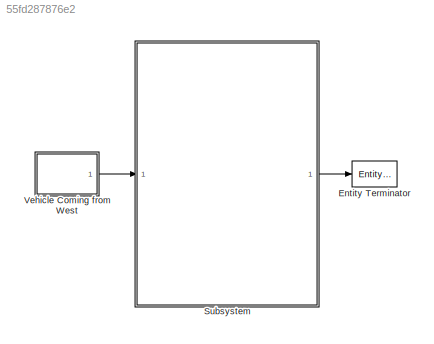
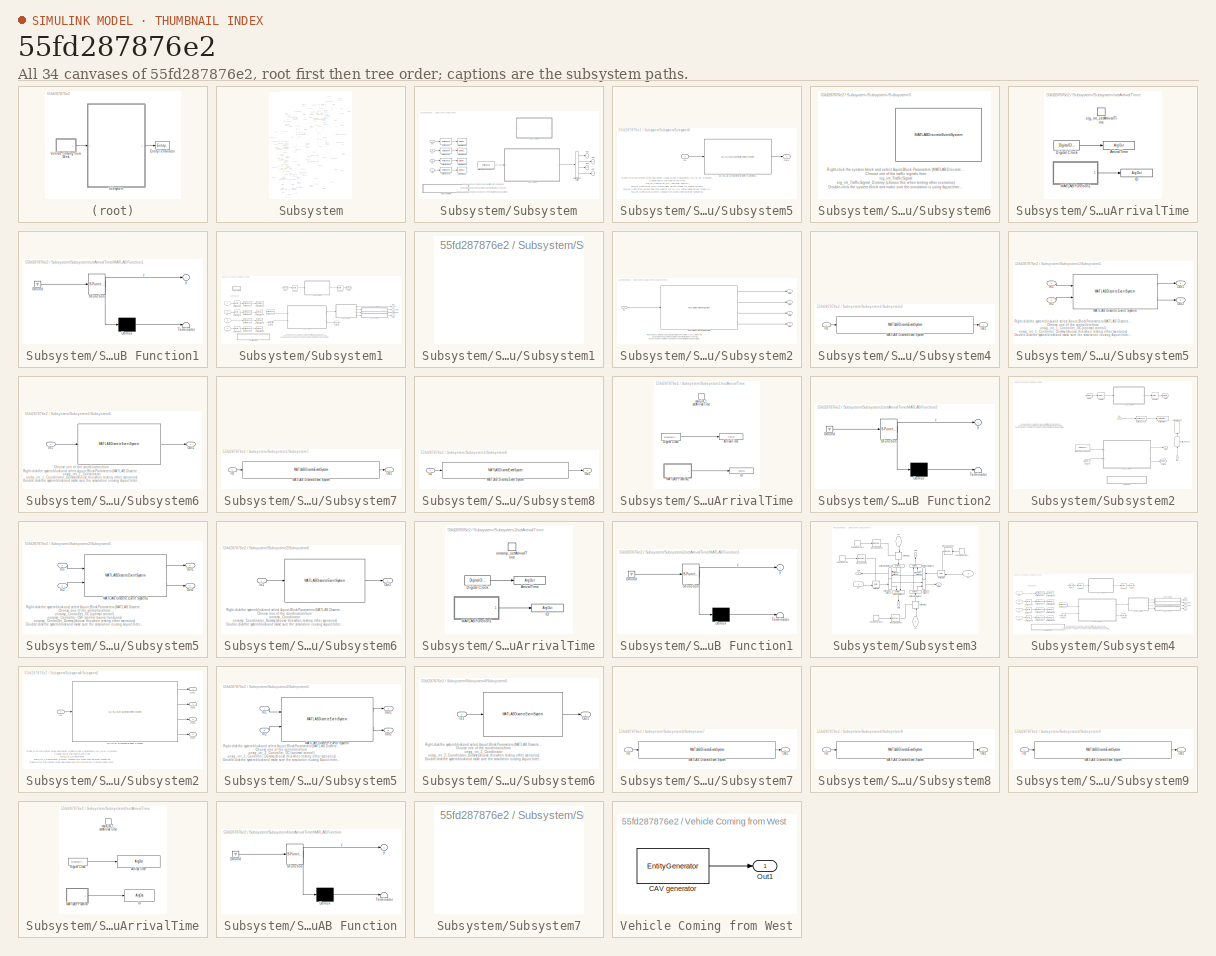
[diagram: thumbnail index - all 34 canvases of the model, root first then tree order]
MODEL slx_55fd287876e2
KIND model
CONFIG AbsTol = auto
CONFIG EnableMultiTasking = off
CONFIG FixedStep = auto
CONFIG MaxStep = auto
CONFIG MinStep = auto
CONFIG RelTol = 1e-3
CONFIG SampleTimeConstraint = Unconstrained
CONFIG Solver = VariableStepAuto
CONFIG SolverName = VariableStepAuto
CONFIG StartTime = 0.0
CONFIG StopTime = 100
BLOCK [EntityTerminator] Entity Terminator
  InputPortMap = u0
  InputPortMessageModes = m
  Ports = [1]
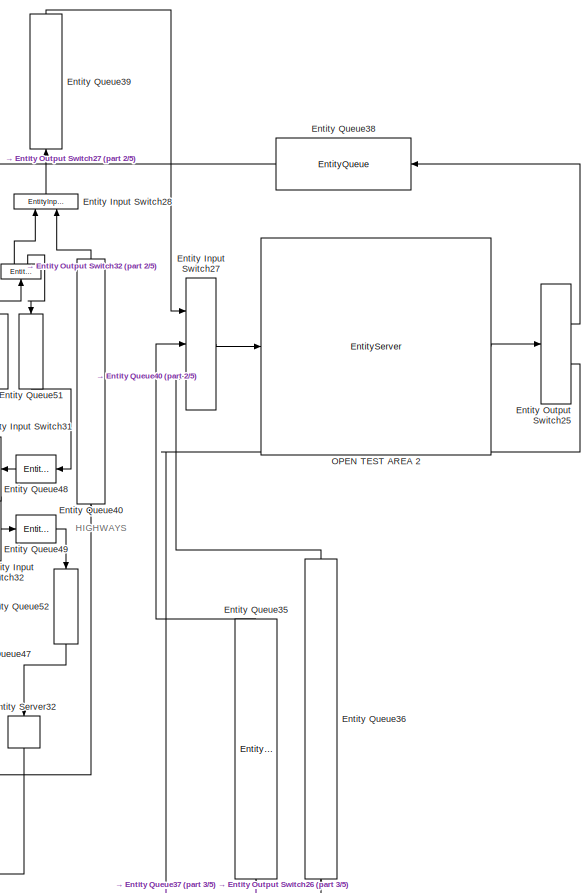
[diagram: Subsystem - part 1/5, top right region]
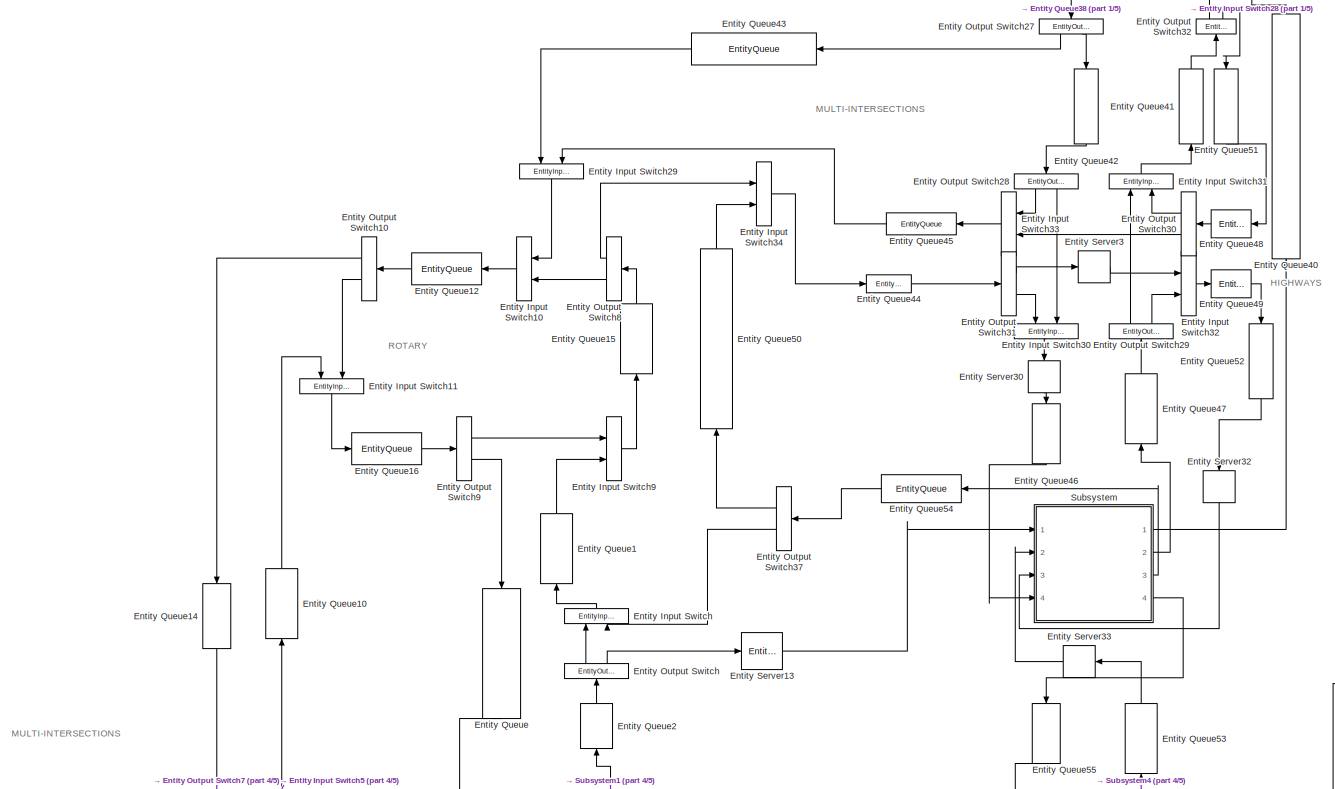
[diagram: Subsystem - part 2/5, full width, top band]
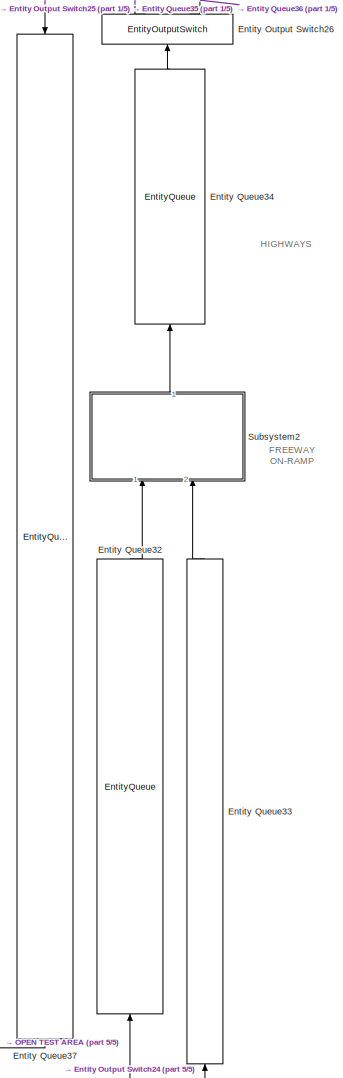
[diagram: Subsystem - part 3/5, middle right region]
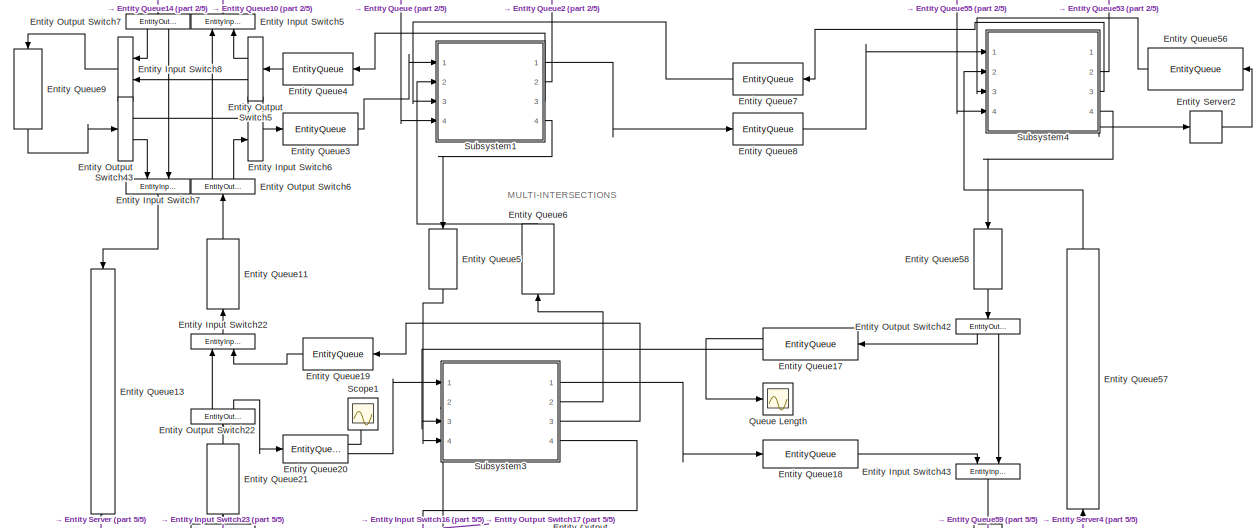
[diagram: Subsystem - part 4/5, central region]
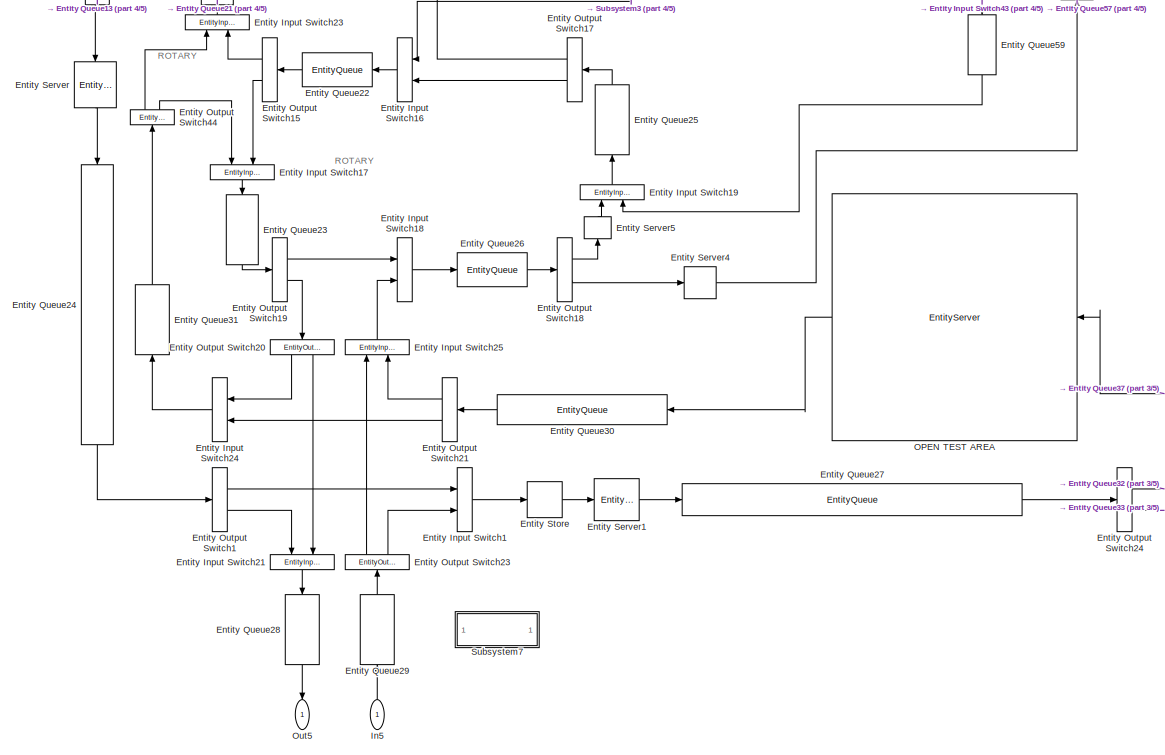
[diagram: Subsystem - part 5/5, bottom center region]
BLOCK [SubSystem] Subsystem
  Ports = [1, 1]
  RequestExecContextInheritance = off
BLOCK [EntityInputSwitch] Subsystem/Entity Input Switch
  InputPortMap = u1,u2
  InputPortMessageModes = m,m
  OutputPortMap = o0
  OutputPortMessageModes = m
  Ports = [2, 1]
BLOCK [EntityInputSwitch] Subsystem/Entity Input Switch1
  InputPortMap = u1,u2
  InputPortMessageModes = m,m
  OutputPortMap = o0
  OutputPortMessageModes = m
  Ports = [2, 1]
BLOCK [EntityInputSwitch] Subsystem/Entity Input Switch10
  InputPortMap = u1,u2
  InputPortMessageModes = m,m
  OutputPortMap = o0
  OutputPortMessageModes = m
  Ports = [2, 1]
BLOCK [EntityInputSwitch] Subsystem/Entity Input Switch11
  InputPortMap = u1,u2
  InputPortMessageModes = m,m
  OutputPortMap = o0
  OutputPortMessageModes = m
  Ports = [2, 1]
BLOCK [EntityInputSwitch] Subsystem/Entity Input Switch16
  InputPortMap = u1,u2
  InputPortMessageModes = m,m
  OutputPortMap = o0
  OutputPortMessageModes = m
  Ports = [2, 1]
BLOCK [EntityInputSwitch] Subsystem/Entity Input Switch17
  InputPortMap = u1,u2
  InputPortMessageModes = m,m
  OutputPortMap = o0
  OutputPortMessageModes = m
  Ports = [2, 1]
BLOCK [EntityInputSwitch] Subsystem/Entity Input Switch18
  InputPortMap = u1,u2
  InputPortMessageModes = m,m
  OutputPortMap = o0
  OutputPortMessageModes = m
  Ports = [2, 1]
BLOCK [EntityInputSwitch] Subsystem/Entity Input Switch19
  InputPortMap = u1,u2
  InputPortMessageModes = m,m
  OutputPortMap = o0
  OutputPortMessageModes = m
  Ports = [2, 1]
BLOCK [EntityInputSwitch] Subsystem/Entity Input Switch21
  InputPortMap = u1,u2
  InputPortMessageModes = m,m
  OutputPortMap = o0
  OutputPortMessageModes = m
  Ports = [2, 1]
BLOCK [EntityInputSwitch] Subsystem/Entity Input Switch22
  InputPortMap = u1,u2
  InputPortMessageModes = m,m
  OutputPortMap = o0
  OutputPortMessageModes = m
  Ports = [2, 1]
BLOCK [EntityInputSwitch] Subsystem/Entity Input Switch23
  InputPortMap = u1,u2
  InputPortMessageModes = m,m
  OutputPortMap = o0
  OutputPortMessageModes = m
  Ports = [2, 1]
BLOCK [EntityInputSwitch] Subsystem/Entity Input Switch24
  InputPortMap = u1,u2
  InputPortMessageModes = m,m
  OutputPortMap = o0
  OutputPortMessageModes = m
  Ports = [2, 1]
BLOCK [EntityInputSwitch] Subsystem/Entity Input Switch25
  InputPortMap = u1,u2
  InputPortMessageModes = m,m
  OutputPortMap = o0
  OutputPortMessageModes = m
  Ports = [2, 1]
BLOCK [EntityInputSwitch] Subsystem/Entity Input Switch27
  InputPortMap = u1,u2,u3
  InputPortMessageModes = m,m,m
  NumberInputPorts = 3
  OutputPortMap = o0
  OutputPortMessageModes = m
  Ports = [3, 1]
BLOCK [EntityInputSwitch] Subsystem/Entity Input Switch28
  InputPortMap = u1,u2
  InputPortMessageModes = m,m
  OutputPortMap = o0
  OutputPortMessageModes = m
  Ports = [2, 1]
BLOCK [EntityInputSwitch] Subsystem/Entity Input Switch29
  InputPortMap = u1,u2
  InputPortMessageModes = m,m
  OutputPortMap = o0
  OutputPortMessageModes = m
  Ports = [2, 1]
BLOCK [EntityInputSwitch] Subsystem/Entity Input Switch30
  InputPortMap = u1,u2
  InputPortMessageModes = m,m
  OutputPortMap = o0
  OutputPortMessageModes = m
  Ports = [2, 1]
BLOCK [EntityInputSwitch] Subsystem/Entity Input Switch31
  InputPortMap = u1,u2
  InputPortMessageModes = m,m
  OutputPortMap = o0
  OutputPortMessageModes = m
  Ports = [2, 1]
BLOCK [EntityInputSwitch] Subsystem/Entity Input Switch32
  InputPortMap = u1,u2
  InputPortMessageModes = m,m
  OutputPortMap = o0
  OutputPortMessageModes = m
  Ports = [2, 1]
BLOCK [EntityInputSwitch] Subsystem/Entity Input Switch33
  InputPortMap = u1,u2
  InputPortMessageModes = m,m
  OutputPortMap = o0
  OutputPortMessageModes = m
  Ports = [2, 1]
BLOCK [EntityInputSwitch] Subsystem/Entity Input Switch34
  InputPortMap = u1,u2
  InputPortMessageModes = m,m
  OutputPortMap = o0
  OutputPortMessageModes = m
  Ports = [2, 1]
BLOCK [EntityInputSwitch] Subsystem/Entity Input Switch43
  InputPortMap = u1,u2
  InputPortMessageModes = m,m
  OutputPortMap = o0
  OutputPortMessageModes = m
  Ports = [2, 1]
BLOCK [EntityInputSwitch] Subsystem/Entity Input Switch5
  InputPortMap = u1,u2
  InputPortMessageModes = m,m
  OutputPortMap = o0
  OutputPortMessageModes = m
  Ports = [2, 1]
BLOCK [EntityInputSwitch] Subsystem/Entity Input Switch6
  InputPortMap = u1,u2
  InputPortMessageModes = m,m
  OutputPortMap = o0
  OutputPortMessageModes = m
  Ports = [2, 1]
BLOCK [EntityInputSwitch] Subsystem/Entity Input Switch7
  InputPortMap = u1,u2
  InputPortMessageModes = m,m
  OutputPortMap = o0
  OutputPortMessageModes = m
  Ports = [2, 1]
BLOCK [EntityInputSwitch] Subsystem/Entity Input Switch8
  InputPortMap = u1,u2
  InputPortMessageModes = m,m
  OutputPortMap = o0
  OutputPortMessageModes = m
  Ports = [2, 1]
BLOCK [EntityInputSwitch] Subsystem/Entity Input Switch9
  InputPortMap = u1,u2
  InputPortMessageModes = m,m
  OutputPortMap = o0
  OutputPortMessageModes = m
  Ports = [2, 1]
BLOCK [EntityOutputSwitch] Subsystem/Entity Output Switch
  InputPortMap = u1
  InputPortMessageModes = m
  OutputPortMap = o0,o1
  OutputPortMessageModes = m,m
  Ports = [1, 2]
  SwitchAttributeName = Attribute1
  SwitchingCriterion = Round robin
BLOCK [EntityOutputSwitch] Subsystem/Entity Output Switch1
  InputPortMap = u1
  InputPortMessageModes = m
  OutputPortMap = o0,o1
  OutputPortMessageModes = m,m
  Ports = [1, 2]
  SwitchAttributeName = Attribute1
  SwitchingCriterion = Round robin
BLOCK [EntityOutputSwitch] Subsystem/Entity Output Switch10
  InputPortMap = u1
  InputPortMessageModes = m
  OutputPortMap = o0,o1
  OutputPortMessageModes = m,m
  Ports = [1, 2]
  SwitchAttributeName = Attribute1
  SwitchingCriterion = Round robin
BLOCK [EntityOutputSwitch] Subsystem/Entity Output Switch15
  InputPortMap = u1
  InputPortMessageModes = m
  OutputPortMap = o0,o1
  OutputPortMessageModes = m,m
  Ports = [1, 2]
  SwitchAttributeName = Attribute1
  SwitchingCriterion = Round robin
BLOCK [EntityOutputSwitch] Subsystem/Entity Output Switch17
  InputPortMap = u1
  InputPortMessageModes = m
  OutputPortMap = o0,o1
  OutputPortMessageModes = m,m
  Ports = [1, 2]
  SwitchAttributeName = Attribute1
BLOCK [EntityOutputSwitch] Subsystem/Entity Output Switch18
  InputPortMap = u1
  InputPortMessageModes = m
  OutputPortMap = o0,o1
  OutputPortMessageModes = m,m
  Ports = [1, 2]
  SwitchAttributeName = Attribute1
  SwitchingCriterion = Round robin
BLOCK [EntityOutputSwitch] Subsystem/Entity Output Switch19
  InputPortMap = u1
  InputPortMessageModes = m
  OutputPortMap = o0,o1
  OutputPortMessageModes = m,m
  Ports = [1, 2]
  SwitchAttributeName = Attribute1
BLOCK [EntityOutputSwitch] Subsystem/Entity Output Switch20
  InputPortMap = u1
  InputPortMessageModes = m
  OutputPortMap = o0,o1
  OutputPortMessageModes = m,m
  Ports = [1, 2]
  SwitchAttributeName = Attribute1
  SwitchingCriterion = Round robin
BLOCK [EntityOutputSwitch] Subsystem/Entity Output Switch21
  InputPortMap = u1
  InputPortMessageModes = m
  OutputPortMap = o0,o1
  OutputPortMessageModes = m,m
  Ports = [1, 2]
  SwitchAttributeName = Attribute1
  SwitchingCriterion = Round robin
BLOCK [EntityOutputSwitch] Subsystem/Entity Output Switch22
  InputPortMap = u1
  InputPortMessageModes = m
  OutputPortMap = o0,o1
  OutputPortMessageModes = m,m
  Ports = [1, 2]
  SwitchAttributeName = Attribute1
  SwitchingCriterion = Round robin
BLOCK [EntityOutputSwitch] Subsystem/Entity Output Switch23
  InputPortMap = u1
  InputPortMessageModes = m
  OutputPortMap = o0,o1
  OutputPortMessageModes = m,m
  Ports = [1, 2]
  SwitchAttributeName = Lane
  SwitchingCriterion = Round robin
BLOCK [EntityOutputSwitch] Subsystem/Entity Output Switch24
  InputPortMap = u1
  InputPortMessageModes = m
  OutputPortMap = o0,o1
  OutputPortMessageModes = m,m
  Ports = [1, 2]
  SwitchAttributeName = Attribute1
  SwitchingCriterion = Round robin
BLOCK [EntityOutputSwitch] Subsystem/Entity Output Switch25
  InputPortMap = u1
  InputPortMessageModes = m
  OutputPortMap = o0,o1
  OutputPortMessageModes = m,m
  Ports = [1, 2]
  SwitchAttributeName = Attribute1
  SwitchingCriterion = Round robin
BLOCK [EntityOutputSwitch] Subsystem/Entity Output Switch26
  InputPortMap = u1
  InputPortMessageModes = m
  OutputPortMap = o0,o1
  OutputPortMessageModes = m,m
  Ports = [1, 2]
  SwitchAttributeName = Attribute1
  SwitchingCriterion = Round robin
BLOCK [EntityOutputSwitch] Subsystem/Entity Output Switch27
  InputPortMap = u1
  InputPortMessageModes = m
  OutputPortMap = o0,o1
  OutputPortMessageModes = m,m
  Ports = [1, 2]
  SwitchAttributeName = Attribute1
  SwitchingCriterion = Round robin
BLOCK [EntityOutputSwitch] Subsystem/Entity Output Switch28
  InputPortMap = u1
  InputPortMessageModes = m
  OutputPortMap = o0,o1
  OutputPortMessageModes = m,m
  Ports = [1, 2]
  SwitchAttributeName = Attribute1
  SwitchingCriterion = Round robin
BLOCK [EntityOutputSwitch] Subsystem/Entity Output Switch29
  InputPortMap = u1
  InputPortMessageModes = m
  OutputPortMap = o0,o1
  OutputPortMessageModes = m,m
  Ports = [1, 2]
  SwitchAttributeName = Attribute1
  SwitchingCriterion = Round robin
BLOCK [EntityOutputSwitch] Subsystem/Entity Output Switch30
  InputPortMap = u1
  InputPortMessageModes = m
  OutputPortMap = o0,o1
  OutputPortMessageModes = m,m
  Ports = [1, 2]
  SwitchAttributeName = Attribute1
  SwitchingCriterion = Round robin
BLOCK [EntityOutputSwitch] Subsystem/Entity Output Switch31
  InputPortMap = u1
  InputPortMessageModes = m
  OutputPortMap = o0,o1
  OutputPortMessageModes = m,m
  Ports = [1, 2]
  SwitchAttributeName = Attribute1
  SwitchingCriterion = Round robin
BLOCK [EntityOutputSwitch] Subsystem/Entity Output Switch32
  InputPortMap = u1
  InputPortMessageModes = m
  OutputPortMap = o0,o1
  OutputPortMessageModes = m,m
  Ports = [1, 2]
  SwitchAttributeName = Attribute1
  SwitchingCriterion = Round robin
BLOCK [EntityOutputSwitch] Subsystem/Entity Output Switch37
  InputPortMap = u1
  InputPortMessageModes = m
  OutputPortMap = o0,o1
  OutputPortMessageModes = m,m
  Ports = [1, 2]
  SwitchAttributeName = Attribute1
  SwitchingCriterion = Round robin
BLOCK [EntityOutputSwitch] Subsystem/Entity Output Switch42
  InputPortMap = u1
  InputPortMessageModes = m
  OutputPortMap = o0,o1
  OutputPortMessageModes = m,m
  Ports = [1, 2]
  SwitchAttributeName = Attribute1
  SwitchingCriterion = Round robin
BLOCK [EntityOutputSwitch] Subsystem/Entity Output Switch43
  InputPortMap = u1
  InputPortMessageModes = m
  OutputPortMap = o0,o1
  OutputPortMessageModes = m,m
  Ports = [1, 2]
  SwitchAttributeName = Attribute1
  SwitchingCriterion = Round robin
BLOCK [EntityOutputSwitch] Subsystem/Entity Output Switch44
  InputPortMap = u1
  InputPortMessageModes = m
  OutputPortMap = o0,o1
  OutputPortMessageModes = m,m
  Ports = [1, 2]
  SwitchAttributeName = Attribute1
  SwitchingCriterion = Round robin
BLOCK [EntityOutputSwitch] Subsystem/Entity Output Switch5
  InputPortMap = u1
  InputPortMessageModes = m
  OutputPortMap = o0,o1
  OutputPortMessageModes = m,m
  Ports = [1, 2]
  SwitchAttributeName = Attribute1
  SwitchingCriterion = Round robin
BLOCK [EntityOutputSwitch] Subsystem/Entity Output Switch6
  InputPortMap = u1
  InputPortMessageModes = m
  OutputPortMap = o0,o1
  OutputPortMessageModes = m,m
  Ports = [1, 2]
  SwitchAttributeName = Attribute1
  SwitchingCriterion = Round robin
BLOCK [EntityOutputSwitch] Subsystem/Entity Output Switch7
  InputPortMap = u1
  InputPortMessageModes = m
  OutputPortMap = o0,o1
  OutputPortMessageModes = m,m
  Ports = [1, 2]
  SwitchAttributeName = Attribute1
  SwitchingCriterion = Round robin
BLOCK [EntityOutputSwitch] Subsystem/Entity Output Switch8
  InputPortMap = u1
  InputPortMessageModes = m
  OutputPortMap = o0,o1
  OutputPortMessageModes = m,m
  Ports = [1, 2]
  SwitchAttributeName = Attribute1
  SwitchingCriterion = Round robin
BLOCK [EntityOutputSwitch] Subsystem/Entity Output Switch9
  InputPortMap = u1
  InputPortMessageModes = m
  OutputPortMap = o0,o1
  OutputPortMessageModes = m,m
  Ports = [1, 2]
  SwitchAttributeName = Attribute1
  SwitchingCriterion = Round robin
BLOCK [EntityQueue] Subsystem/Entity Queue
  InputPortMap = u0
  InputPortMessageModes = m
  OutputPortMap = o5
  OutputPortMessageModes = m
  Ports = [1, 1]
BLOCK [EntityQueue] Subsystem/Entity Queue1
  InputPortMap = u0
  InputPortMessageModes = m
  OutputPortMap = o5
  OutputPortMessageModes = m
  Ports = [1, 1]
BLOCK [EntityQueue] Subsystem/Entity Queue10
  InputPortMap = u0
  InputPortMessageModes = m
  OutputPortMap = o5
  OutputPortMessageModes = m
  Ports = [1, 1]
BLOCK [EntityQueue] Subsystem/Entity Queue11
  InputPortMap = u0
  InputPortMessageModes = m
  OutputPortMap = o5
  OutputPortMessageModes = m
  Ports = [1, 1]
BLOCK [EntityQueue] Subsystem/Entity Queue12
  InputPortMap = u0
  InputPortMessageModes = m
  OutputPortMap = o5
  OutputPortMessageModes = m
  Ports = [1, 1]
BLOCK [EntityQueue] Subsystem/Entity Queue13
  InputPortMap = u0
  InputPortMessageModes = m
  OutputPortMap = o5
  OutputPortMessageModes = m
  Ports = [1, 1]
BLOCK [EntityQueue] Subsystem/Entity Queue14
  InputPortMap = u0
  InputPortMessageModes = m
  OutputPortMap = o5
  OutputPortMessageModes = m
  Ports = [1, 1]
BLOCK [EntityQueue] Subsystem/Entity Queue15
  InputPortMap = u0
  InputPortMessageModes = m
  OutputPortMap = o5
  OutputPortMessageModes = m
  Ports = [1, 1]
BLOCK [EntityQueue] Subsystem/Entity Queue16
  InputPortMap = u0
  InputPortMessageModes = m
  OutputPortMap = o5
  OutputPortMessageModes = m
  Ports = [1, 1]
BLOCK [EntityQueue] Subsystem/Entity Queue17
  Capacity = 15
  InputPortMap = u0
  InputPortMessageModes = m
  NumberEntitiesInBlock = on
  OutputPortMap = o1,o5
  OutputPortMessageModes = n,m
  Ports = [1, 2]
BLOCK [EntityQueue] Subsystem/Entity Queue18
  Capacity = 15
  InputPortMap = u0
  InputPortMessageModes = m
  OutputPortMap = o5
  OutputPortMessageModes = m
  Ports = [1, 1]
BLOCK [EntityQueue] Subsystem/Entity Queue19
  InputPortMap = u0
  InputPortMessageModes = m
  OutputPortMap = o5
  OutputPortMessageModes = m
  Ports = [1, 1]
BLOCK [EntityQueue] Subsystem/Entity Queue2
  InputPortMap = u0
  InputPortMessageModes = m
  OutputPortMap = o5
  OutputPortMessageModes = m
  Ports = [1, 1]
BLOCK [EntityQueue] Subsystem/Entity Queue20
  AverageQueueLength = on
  InputPortMap = u0
  InputPortMessageModes = m
  OutputPortMap = o3,o5
  OutputPortMessageModes = n,m
  Ports = [1, 2]
BLOCK [EntityQueue] Subsystem/Entity Queue21
  InputPortMap = u0
  InputPortMessageModes = m
  OutputPortMap = o5
  OutputPortMessageModes = m
  Ports = [1, 1]
BLOCK [EntityQueue] Subsystem/Entity Queue22
  InputPortMap = u0
  InputPortMessageModes = m
  OutputPortMap = o5
  OutputPortMessageModes = m
  Ports = [1, 1]
BLOCK [EntityQueue] Subsystem/Entity Queue23
  InputPortMap = u0
  InputPortMessageModes = m
  OutputPortMap = o5
  OutputPortMessageModes = m
  Ports = [1, 1]
BLOCK [EntityQueue] Subsystem/Entity Queue24
  InputPortMap = u0
  InputPortMessageModes = m
  OutputPortMap = o5
  OutputPortMessageModes = m
  Ports = [1, 1]
BLOCK [EntityQueue] Subsystem/Entity Queue25
  InputPortMap = u0
  InputPortMessageModes = m
  OutputPortMap = o5
  OutputPortMessageModes = m
  Ports = [1, 1]
BLOCK [EntityQueue] Subsystem/Entity Queue26
  InputPortMap = u0
  InputPortMessageModes = m
  OutputPortMap = o5
  OutputPortMessageModes = m
  Ports = [1, 1]
BLOCK [EntityQueue] Subsystem/Entity Queue27
  Capacity = Inf
  InputPortMap = u0
  InputPortMessageModes = m
  OutputPortMap = o5
  OutputPortMessageModes = m
  Ports = [1, 1]
BLOCK [EntityQueue] Subsystem/Entity Queue28
  InputPortMap = u0
  InputPortMessageModes = m
  OutputPortMap = o5
  OutputPortMessageModes = m
  Ports = [1, 1]
BLOCK [EntityQueue] Subsystem/Entity Queue29
  Capacity = Inf
  InputPortMap = u0
  InputPortMessageModes = m
  OutputPortMap = o5
  OutputPortMessageModes = m
  Ports = [1, 1]
BLOCK [EntityQueue] Subsystem/Entity Queue3
  InputPortMap = u0
  InputPortMessageModes = m
  OutputPortMap = o5
  OutputPortMessageModes = m
  Ports = [1, 1]
BLOCK [EntityQueue] Subsystem/Entity Queue30
  InputPortMap = u0
  InputPortMessageModes = m
  OutputPortMap = o5
  OutputPortMessageModes = m
  Ports = [1, 1]
BLOCK [EntityQueue] Subsystem/Entity Queue31
  InputPortMap = u0
  InputPortMessageModes = m
  OutputPortMap = o5
  OutputPortMessageModes = m
  Ports = [1, 1]
BLOCK [EntityQueue] Subsystem/Entity Queue32
  Capacity = Inf
  InputPortMap = u0
  InputPortMessageModes = m
  OutputPortMap = o5
  OutputPortMessageModes = m
  Ports = [1, 1]
BLOCK [EntityQueue] Subsystem/Entity Queue33
  Capacity = Inf
  InputPortMap = u0
  InputPortMessageModes = m
  OutputPortMap = o5
  OutputPortMessageModes = m
  Ports = [1, 1]
BLOCK [EntityQueue] Subsystem/Entity Queue34
  Capacity = Inf
  InputPortMap = u0
  InputPortMessageModes = m
  OutputPortMap = o5
  OutputPortMessageModes = m
  Ports = [1, 1]
BLOCK [EntityQueue] Subsystem/Entity Queue35
  InputPortMap = u0
  InputPortMessageModes = m
  OutputPortMap = o5
  OutputPortMessageModes = m
  Ports = [1, 1]
BLOCK [EntityQueue] Subsystem/Entity Queue36
  InputPortMap = u0
  InputPortMessageModes = m
  OutputPortMap = o5
  OutputPortMessageModes = m
  Ports = [1, 1]
BLOCK [EntityQueue] Subsystem/Entity Queue37
  InputPortMap = u0
  InputPortMessageModes = m
  OutputPortMap = o5
  OutputPortMessageModes = m
  Ports = [1, 1]
BLOCK [EntityQueue] Subsystem/Entity Queue38
  InputPortMap = u0
  InputPortMessageModes = m
  OutputPortMap = o5
  OutputPortMessageModes = m
  Ports = [1, 1]
BLOCK [EntityQueue] Subsystem/Entity Queue39
  InputPortMap = u0
  InputPortMessageModes = m
  OutputPortMap = o5
  OutputPortMessageModes = m
  Ports = [1, 1]
BLOCK [EntityQueue] Subsystem/Entity Queue4
  InputPortMap = u0
  InputPortMessageModes = m
  OutputPortMap = o5
  OutputPortMessageModes = m
  Ports = [1, 1]
BLOCK [EntityQueue] Subsystem/Entity Queue40
  InputPortMap = u0
  InputPortMessageModes = m
  OutputPortMap = o5
  OutputPortMessageModes = m
  Ports = [1, 1]
BLOCK [EntityQueue] Subsystem/Entity Queue41
  InputPortMap = u0
  InputPortMessageModes = m
  OutputPortMap = o5
  OutputPortMessageModes = m
  Ports = [1, 1]
BLOCK [EntityQueue] Subsystem/Entity Queue42
  InputPortMap = u0
  InputPortMessageModes = m
  OutputPortMap = o5
  OutputPortMessageModes = m
  Ports = [1, 1]
BLOCK [EntityQueue] Subsystem/Entity Queue43
  InputPortMap = u0
  InputPortMessageModes = m
  OutputPortMap = o5
  OutputPortMessageModes = m
  Ports = [1, 1]
BLOCK [EntityQueue] Subsystem/Entity Queue44
  InputPortMap = u0
  InputPortMessageModes = m
  OutputPortMap = o5
  OutputPortMessageModes = m
  Ports = [1, 1]
BLOCK [EntityQueue] Subsystem/Entity Queue45
  InputPortMap = u0
  InputPortMessageModes = m
  OutputPortMap = o5
  OutputPortMessageModes = m
  Ports = [1, 1]
BLOCK [EntityQueue] Subsystem/Entity Queue46
  InputPortMap = u0
  InputPortMessageModes = m
  OutputPortMap = o5
  OutputPortMessageModes = m
  Ports = [1, 1]
BLOCK [EntityQueue] Subsystem/Entity Queue47
  InputPortMap = u0
  InputPortMessageModes = m
  OutputPortMap = o5
  OutputPortMessageModes = m
  Ports = [1, 1]
BLOCK [EntityQueue] Subsystem/Entity Queue48
  InputPortMap = u0
  InputPortMessageModes = m
  OutputPortMap = o5
  OutputPortMessageModes = m
  Ports = [1, 1]
BLOCK [EntityQueue] Subsystem/Entity Queue49
  InputPortMap = u0
  InputPortMessageModes = m
  OutputPortMap = o5
  OutputPortMessageModes = m
  Ports = [1, 1]
BLOCK [EntityQueue] Subsystem/Entity Queue5
  InputPortMap = u0
  InputPortMessageModes = m
  OutputPortMap = o5
  OutputPortMessageModes = m
  Ports = [1, 1]
BLOCK [EntityQueue] Subsystem/Entity Queue50
  InputPortMap = u0
  InputPortMessageModes = m
  OutputPortMap = o5
  OutputPortMessageModes = m
  Ports = [1, 1]
BLOCK [EntityQueue] Subsystem/Entity Queue51
  InputPortMap = u0
  InputPortMessageModes = m
  OutputPortMap = o5
  OutputPortMessageModes = m
  Ports = [1, 1]
BLOCK [EntityQueue] Subsystem/Entity Queue52
  InputPortMap = u0
  InputPortMessageModes = m
  OutputPortMap = o5
  OutputPortMessageModes = m
  Ports = [1, 1]
BLOCK [EntityQueue] Subsystem/Entity Queue53
  InputPortMap = u0
  InputPortMessageModes = m
  OutputPortMap = o5
  OutputPortMessageModes = m
  Ports = [1, 1]
BLOCK [EntityQueue] Subsystem/Entity Queue54
  InputPortMap = u0
  InputPortMessageModes = m
  OutputPortMap = o5
  OutputPortMessageModes = m
  Ports = [1, 1]
BLOCK [EntityQueue] Subsystem/Entity Queue55
  InputPortMap = u0
  InputPortMessageModes = m
  OutputPortMap = o5
  OutputPortMessageModes = m
  Ports = [1, 1]
BLOCK [EntityQueue] Subsystem/Entity Queue56
  InputPortMap = u0
  InputPortMessageModes = m
  OutputPortMap = o5
  OutputPortMessageModes = m
  Ports = [1, 1]
BLOCK [EntityQueue] Subsystem/Entity Queue57
  InputPortMap = u0
  InputPortMessageModes = m
  OutputPortMap = o5
  OutputPortMessageModes = m
  Ports = [1, 1]
BLOCK [EntityQueue] Subsystem/Entity Queue58
  InputPortMap = u0
  InputPortMessageModes = m
  OutputPortMap = o5
  OutputPortMessageModes = m
  Ports = [1, 1]
BLOCK [EntityQueue] Subsystem/Entity Queue59
  InputPortMap = u0
  InputPortMessageModes = m
  OutputPortMap = o5
  OutputPortMessageModes = m
  Ports = [1, 1]
BLOCK [EntityQueue] Subsystem/Entity Queue6
  InputPortMap = u0
  InputPortMessageModes = m
  OutputPortMap = o5
  OutputPortMessageModes = m
  Ports = [1, 1]
BLOCK [EntityQueue] Subsystem/Entity Queue7
  InputPortMap = u0
  InputPortMessageModes = m
  OutputPortMap = o5
  OutputPortMessageModes = m
  Ports = [1, 1]
BLOCK [EntityQueue] Subsystem/Entity Queue8
  InputPortMap = u0
  InputPortMessageModes = m
  OutputPortMap = o5
  OutputPortMessageModes = m
  Ports = [1, 1]
BLOCK [EntityQueue] Subsystem/Entity Queue9
  InputPortMap = u0
  InputPortMessageModes = m
  OutputPortMap = o5
  OutputPortMessageModes = m
  Ports = [1, 1]
BLOCK [EntityServer] Subsystem/Entity Server
  Capacity = Inf
  InputPortMap = u2
  InputPortMessageModes = m
  OutputPortMap = o9
  OutputPortMessageModes = m
  Ports = [1, 1]
  ServiceTimeValue = 2.5
BLOCK [EntityServer] Subsystem/Entity Server1
  Capacity = 1
  InputPortMap = u2
  InputPortMessageModes = m
  OutputPortMap = o9
  OutputPortMessageModes = m
  Ports = [1, 1]
  ServiceTimeValue = 2
BLOCK [EntityServer] Subsystem/Entity Server13
  Capacity = Inf
  InputPortMap = u2
  InputPortMessageModes = m
  OutputPortMap = o9
  OutputPortMessageModes = m
  Ports = [1, 1]
  ServiceTimeValue = 2.5
BLOCK [EntityServer] Subsystem/Entity Server2
  Capacity = Inf
  InputPortMap = u2
  InputPortMessageModes = m
  OutputPortMap = o9
  OutputPortMessageModes = m
  Ports = [1, 1]
  ServiceTimeValue = 5
BLOCK [EntityServer] Subsystem/Entity Server3
  Capacity = Inf
  InputPortMap = u2
  InputPortMessageModes = m
  OutputPortMap = o9
  OutputPortMessageModes = m
  Ports = [1, 1]
  ServiceTimeValue = 2.5
BLOCK [EntityServer] Subsystem/Entity Server30
  Capacity = Inf
  InputPortMap = u2
  InputPortMessageModes = m
  OutputPortMap = o9
  OutputPortMessageModes = m
  Ports = [1, 1]
  ServiceTimeValue = 2.5
BLOCK [EntityServer] Subsystem/Entity Server32
  Capacity = Inf
  InputPortMap = u2
  InputPortMessageModes = m
  OutputPortMap = o9
  OutputPortMessageModes = m
  Ports = [1, 1]
  ServiceTimeValue = 2.5
BLOCK [EntityServer] Subsystem/Entity Server33
  Capacity = Inf
  InputPortMap = u2
  InputPortMessageModes = m
  OutputPortMap = o9
  OutputPortMessageModes = m
  Ports = [1, 1]
  ServiceTimeValue = 2.5
BLOCK [EntityServer] Subsystem/Entity Server4
  Capacity = Inf
  InputPortMap = u2
  InputPortMessageModes = m
  OutputPortMap = o9
  OutputPortMessageModes = m
  Ports = [1, 1]
  ServiceTimeValue = 5
BLOCK [EntityServer] Subsystem/Entity Server5
  Capacity = Inf
  InputPortMap = u2
  InputPortMessageModes = m
  OutputPortMap = o9
  OutputPortMessageModes = m
  Ports = [1, 1]
  ServiceTimeValue = 2.5
BLOCK [EntityStore] Subsystem/Entity Store
  Capacity = 100
  InputPortMap = u0
  InputPortMessageModes = m
  OutputPortMap = o4
  OutputPortMessageModes = m
  Ports = [1, 1]
BLOCK [Inport] Subsystem/In5
  IconDisplay = Port number
BLOCK [EntityServer] Subsystem/OPEN TEST AREA
  Capacity = 200
  InputPortMap = u2
  InputPortMessageModes = m
  OutputPortMap = o9
  OutputPortMessageModes = m
  Ports = [1, 1]
BLOCK [EntityServer] Subsystem/OPEN TEST AREA 2 
  Capacity = 200
  InputPortMap = u2
  InputPortMessageModes = m
  OutputPortMap = o9
  OutputPortMessageModes = m
  Ports = [1, 1]
BLOCK [Outport] Subsystem/Out5
  IconDisplay = Port number
BLOCK [Scope] Subsystem/Queue Length
  Floating = off
  NumInputPorts = 1
  Ports = [1]
  ScopeSpecificationString = Simulink.scopes.TimeScopeBlockCfg('CurrentConfiguration', extmgr.ConfigurationSet(extmgr.Configuration('Core','General UI',true,'FigureColor',[1 1 1]),extmgr.Configuration('Core','Source UI',true),extmgr.Configuration('Sources','WiredSimulink',true,'DataLoggingVariableName','ScopeData1'),extmgr.Configuration('Visuals','Time Domain',true,'SerializedDisplays',{struct('MinYLimReal','-0.125','MaxYLimR...<+1580ch>
BLOCK [Scope] Subsystem/Scope1
  Floating = off
  NumInputPorts = 1
  Ports = [1]
  ScopeSpecificationString = Simulink.scopes.TimeScopeBlockCfg('CurrentConfiguration', extmgr.ConfigurationSet(extmgr.Configuration('Core','General UI',true),extmgr.Configuration('Core','Source UI',true),extmgr.Configuration('Sources','WiredSimulink',true),extmgr.Configuration('Visuals','Time Domain',true,'SerializedDisplays',{struct('MinYLimReal','-1.5625','MaxYLimReal','14.0625','YLabelReal','','MinYLimMag','0.00000','MaxYL...<+1364ch>
BLOCK [SubSystem] Subsystem/Subsystem
  Ports = [4, 4]
  RequestExecContextInheritance = off
BLOCK [EntityMulticast] Subsystem/Subsystem/Entity Multicast
  InputPortMessageModes = m
  MulticastTag = sig_1_CAV
BLOCK [EntityMulticast] Subsystem/Subsystem/Entity Multicast1
  InputPortMessageModes = m
  MulticastTag = sig_1_CAV
BLOCK [EntityMulticast] Subsystem/Subsystem/Entity Multicast2
  InputPortMessageModes = m
  MulticastTag = sig_1_CAV
BLOCK [EntityMulticast] Subsystem/Subsystem/Entity Multicast3
  InputPortMessageModes = m
  MulticastTag = sig_1_CAV
BLOCK [EntityOutputSwitch] Subsystem/Subsystem/Entity Output Switch
  InputPortMap = u1
  InputPortMessageModes = m
  NumberOutputPorts = 4
  OutputPortMap = o0,o1,o2,o3
  OutputPortMessageModes = m,m,m,m
  Ports = [1, 4]
  SwitchAttributeName = Lane
  SwitchingCriterion = From attribute
BLOCK [EntityQueue] Subsystem/Subsystem/Entity Queue
  Capacity = Inf
  EntryAction = [entity.ArrivalTime,...\n    entity.ID] = sig_int_setArrivalTime();\nentity.Lane = 1;\nentity.Speed = 8 + 4 * rand();\nentity.Position = 0;
  InputPortMap = u0
  InputPortMessageModes = m
  OutputPortMap = o5
  OutputPortMessageModes = m
  Ports = [1, 1]
BLOCK [EntityQueue] Subsystem/Subsystem/Entity Queue1
  Capacity = Inf
  EntryAction = [entity.ArrivalTime,...\n    entity.ID] = sig_int_setArrivalTime();\nentity.Lane = 2;\nentity.Speed = 9 + 3 * rand();\nentity.Position = 0;
  InputPortMap = u0
  InputPortMessageModes = m
  OutputPortMap = o5
  OutputPortMessageModes = m
  Ports = [1, 1]
BLOCK [EntityQueue] Subsystem/Subsystem/Entity Queue2
  Capacity = Inf
  EntryAction = [entity.ArrivalTime,...\n    entity.ID] = sig_int_setArrivalTime();\nentity.Lane = 3;\nentity.Speed = 8 + 4 * rand();\nentity.Position = 0;
  InputPortMap = u0
  InputPortMessageModes = m
  OutputPortMap = o5
  OutputPortMessageModes = m
  Ports = [1, 1]
BLOCK [EntityQueue] Subsystem/Subsystem/Entity Queue3
  Capacity = Inf
  EntryAction = [entity.ArrivalTime,...\n    entity.ID] = sig_int_setArrivalTime();\nentity.Lane = 4;\nentity.Speed = 9 + 3 * rand();\nentity.Position = 0;
  InputPortMap = u0
  InputPortMessageModes = m
  OutputPortMap = o5
  OutputPortMessageModes = m
  Ports = [1, 1]
BLOCK [Inport] Subsystem/Subsystem/In3
  IconDisplay = Port number
BLOCK [Inport] Subsystem/Subsystem/In4
  IconDisplay = Port number
  Port = 2
BLOCK [Inport] Subsystem/Subsystem/In5
  IconDisplay = Port number
  Port = 3
BLOCK [Inport] Subsystem/Subsystem/In6
  IconDisplay = Port number
  Port = 4
BLOCK [EntityQueue] Subsystem/Subsystem/Multicast Receive Queue1
  Capacity = 200
  EntityArrivalSource = Multicast
  EntryAction = rann = rand();\nif rann < 0.5\n    entity.Type = 0;\nelse\n    entity.Type = 1;\nend
  MulticastTag = sig_1_CAV
  OutputPortMap = o5
  OutputPortMessageModes = m
  Ports = [0, 1]
BLOCK [Outport] Subsystem/Subsystem/Out1
  IconDisplay = Port number
BLOCK [Outport] Subsystem/Subsystem/Out5
  IconDisplay = Port number
  Port = 2
BLOCK [Outport] Subsystem/Subsystem/Out6
  IconDisplay = Port number
  Port = 3
BLOCK [Outport] Subsystem/Subsystem/Out7
  IconDisplay = Port number
  Port = 4
BLOCK [SubSystem] Subsystem/Subsystem/Subsystem5
  Ports = [1, 1]
  RequestExecContextInheritance = off
BLOCK [Inport] Subsystem/Subsystem/Subsystem5/In1
  IconDisplay = Port number
BLOCK [MATLABDiscreteEventSystem] Subsystem/Subsystem/Subsystem5/MATLAB Discrete-Event System1
  Description = Coordinator
  InputPortMessageModes = m
  L = 400
  MaskDisplay = disp('CONTROL ZONE DUMMY');\nport_label('input',1,'IN');\nport_label('output',1,'OUT');
  MaskType = sig_int_Controller_Dummy
  OutputPortMessageModes = m
  Ports = [1, 1]
  S = 30
  SimulateUsing = Interpreted execution
  System = sig_int_Controller_Dummy
  capacity = 400
  delta = 10
  simulation_step = 0.01
BLOCK [Outport] Subsystem/Subsystem/Subsystem5/Out1
  IconDisplay = Port number
BLOCK [SubSystem] Subsystem/Subsystem/Subsystem6
  Ports = []
  RequestExecContextInheritance = off
BLOCK [MATLABDiscreteEventSystem] Subsystem/Subsystem/Subsystem6/ 
  MaskDisplay = disp('TRAFFIC SIGNAL DUMMY');
  MaskType = sig_int_TrafficSignal_Dummy
  Ports = []
  SimulateUsing = Interpreted execution
  System = sig_int_TrafficSignal_Dummy
  capacity = 100
BLOCK [SubSystem] Subsystem/Subsystem/setArrivalTime
  Ports = [0, 0, 0, 1]
  RequestExecContextInheritance = off
  TreatAsAtomicUnit = on
BLOCK [ArgOut] Subsystem/Subsystem/setArrivalTime/ArrivalTime
  ArgumentName = ArrivalTime
  DisableCoverage = on
BLOCK [DigitalClock] Subsystem/Subsystem/setArrivalTime/Digital Clock
  SampleTime = -1
BLOCK [ArgOut] Subsystem/Subsystem/setArrivalTime/ID
  ArgumentName = ID
  DisableCoverage = on
  Port = 2
BLOCK [SubSystem] Subsystem/Subsystem/setArrivalTime/MATLAB Function1
  ErrorFcn = Stateflow.Translate.translate
  PermitHierarchicalResolution = ExplicitOnly
  Ports = [0, 1]
  RequestExecContextInheritance = off
  SFBlockType = MATLAB Function
  TreatAsAtomicUnit = on
BLOCK [Demux] Subsystem/Subsystem/setArrivalTime/MATLAB Function1/ Demux 
  Outputs = 1
  Ports = [1, 1]
BLOCK [Ground] Subsystem/Subsystem/setArrivalTime/MATLAB Function1/ Ground 
BLOCK [S-Function] Subsystem/Subsystem/setArrivalTime/MATLAB Function1/ SFunction 
  EnableBusSupport = on
  FunctionName = sf_sfun
  PortCounts = [1 2]
  Ports = [1, 2]
  SFcnIsStateOwnerBlock = off
  SFunctionDeploymentMode = off
  Tag = Stateflow S-Function Mcity 1
BLOCK [Terminator] Subsystem/Subsystem/setArrivalTime/MATLAB Function1/ Terminator 
BLOCK [Outport] Subsystem/Subsystem/setArrivalTime/MATLAB Function1/y
  IconDisplay = Port number
BLOCK [TriggerPort] Subsystem/Subsystem/setArrivalTime/sig_int_setArrivalTime
  FunctionName = sig_int_setArrivalTime
  FunctionVisibility = scoped
  IsSimulinkFunction = on
  Ports = []
  StatesWhenEnabling = held
  TriggerType = function-call
  VariantControl = Variant
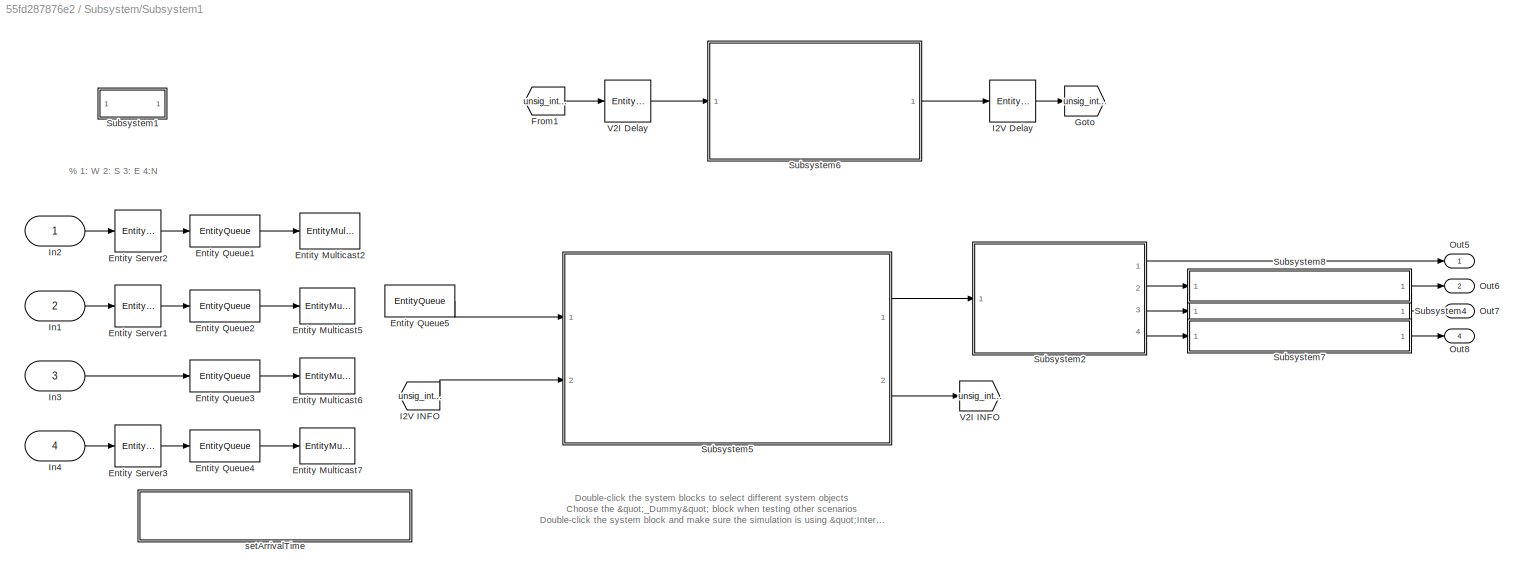
BLOCK [SubSystem] Subsystem/Subsystem1
  Ports = [4, 4]
  RequestExecContextInheritance = off
BLOCK [EntityMulticast] Subsystem/Subsystem1/Entity Multicast2
  InputPortMessageModes = m
  MulticastTag = unsig_1_CAV
BLOCK [EntityMulticast] Subsystem/Subsystem1/Entity Multicast5
  InputPortMessageModes = m
  MulticastTag = unsig_1_CAV
BLOCK [EntityMulticast] Subsystem/Subsystem1/Entity Multicast6
  InputPortMessageModes = m
  MulticastTag = unsig_1_CAV
BLOCK [EntityMulticast] Subsystem/Subsystem1/Entity Multicast7
  InputPortMessageModes = m
  MulticastTag = unsig_1_CAV
BLOCK [EntityQueue] Subsystem/Subsystem1/Entity Queue1
  Capacity = Inf
  EntryAction = entity.Lane = 1;\n[entity.ArrivalTime,...\n    entity.ID] = unsig_int_1_setArrivalTime();\nentity.FinalSpeed = 10;\nentity.Position = 0;\nentity.Intersection = 1;
  InputPortMap = u0
  InputPortMessageModes = m
  OutputPortMap = o5
  OutputPortMessageModes = m
  Ports = [1, 1]
BLOCK [EntityQueue] Subsystem/Subsystem1/Entity Queue2
  Capacity = Inf
  EntryAction = entity.Lane = 2;\n[entity.ArrivalTime,...\n    entity.ID] = unsig_int_1_setArrivalTime();\nentity.FinalSpeed = 10;\nentity.Position = 0;\nentity.Intersection = 1;
  InputPortMap = u0
  InputPortMessageModes = m
  OutputPortMap = o5
  OutputPortMessageModes = m
  Ports = [1, 1]
BLOCK [EntityQueue] Subsystem/Subsystem1/Entity Queue3
  Capacity = Inf
  EntryAction = entity.Lane = 3;\n[entity.ArrivalTime,...\n    entity.ID] = unsig_int_1_setArrivalTime();\nentity.FinalSpeed = 10;\nentity.Position = 0;\nentity.Intersection = 1;
  InputPortMap = u0
  InputPortMessageModes = m
  OutputPortMap = o5
  OutputPortMessageModes = m
  Ports = [1, 1]
BLOCK [EntityQueue] Subsystem/Subsystem1/Entity Queue4
  Capacity = Inf
  EntryAction = entity.Lane = 4;\n[entity.ArrivalTime,...\n    entity.ID] = unsig_int_1_setArrivalTime();\nentity.FinalSpeed = 10;\nentity.Position = 0;\nentity.Intersection = 1;
  InputPortMap = u0
  InputPortMessageModes = m
  OutputPortMap = o5
  OutputPortMessageModes = m
  Ports = [1, 1]
BLOCK [EntityQueue] Subsystem/Subsystem1/Entity Queue5
  Capacity = 400
  EntityArrivalSource = Multicast
  EntryAction = entity.Intersection = 1;
  MulticastTag = unsig_1_CAV
  OutputPortMap = o5
  OutputPortMessageModes = m
  Ports = [0, 1]
BLOCK [EntityServer] Subsystem/Subsystem1/Entity Server1
  Capacity = Inf
  InputPortMap = u2
  InputPortMessageModes = m
  OutputPortMap = o9
  OutputPortMessageModes = m
  Ports = [1, 1]
  ServiceTimeValue = 2.5
BLOCK [EntityServer] Subsystem/Subsystem1/Entity Server2
  Capacity = Inf
  InputPortMap = u2
  InputPortMessageModes = m
  OutputPortMap = o9
  OutputPortMessageModes = m
  Ports = [1, 1]
  ServiceTimeValue = 2.5
BLOCK [EntityServer] Subsystem/Subsystem1/Entity Server3
  Capacity = Inf
  InputPortMap = u2
  InputPortMessageModes = m
  OutputPortMap = o9
  OutputPortMessageModes = m
  Ports = [1, 1]
  ServiceTimeValue = 2.5
BLOCK [From] Subsystem/Subsystem1/From1
  GotoTag = unsig_int_1_B
BLOCK [Goto] Subsystem/Subsystem1/Goto
  GotoTag = unsig_int_1_A
BLOCK [EntityServer] Subsystem/Subsystem1/I2V Delay
  Capacity = Inf
  InputPortMap = u2
  InputPortMessageModes = m
  OutputPortMap = o9
  OutputPortMessageModes = m
  Ports = [1, 1]
  ServiceTimeValue = 0.01
BLOCK [From] Subsystem/Subsystem1/I2V INFO
  GotoTag = unsig_int_1_A
BLOCK [Inport] Subsystem/Subsystem1/In1
  IconDisplay = Port number
  Port = 2
BLOCK [Inport] Subsystem/Subsystem1/In2
  IconDisplay = Port number
BLOCK [Inport] Subsystem/Subsystem1/In3
  IconDisplay = Port number
  Port = 3
BLOCK [Inport] Subsystem/Subsystem1/In4
  IconDisplay = Port number
  Port = 4
BLOCK [Outport] Subsystem/Subsystem1/Out5
  IconDisplay = Port number
BLOCK [Outport] Subsystem/Subsystem1/Out6
  IconDisplay = Port number
  Port = 2
BLOCK [Outport] Subsystem/Subsystem1/Out7
  IconDisplay = Port number
  Port = 3
BLOCK [Outport] Subsystem/Subsystem1/Out8
  IconDisplay = Port number
  Port = 4
BLOCK [SubSystem] Subsystem/Subsystem1/Subsystem1
  OpenFcn = init_func
  Ports = []
  RequestExecContextInheritance = off
BLOCK [SubSystem] Subsystem/Subsystem1/Subsystem2
  Ports = [1, 4]
  RequestExecContextInheritance = off
BLOCK [Inport] Subsystem/Subsystem1/Subsystem2/In1
  IconDisplay = Port number
BLOCK [MATLABDiscreteEventSystem] Subsystem/Subsystem1/Subsystem2/MATLAB Discrete-Event System
  InputPortMessageModes = m
  MaskDisplay = disp('THE MERGING ZONE');\nport_label('input',1,'CAV');\nport_label('output',1,'TO WEST');\nport_label('output',2,'TO SOUTH');\nport_label('output',3,'TO EAST');\nport_label('output',4,'TO NORTH');
  MaskType = unsig_int_1_MergingZoneCruiser_Dummy
  OutputPortMessageModes = m,m,m,m
  Ports = [1, 4]
  SimulateUsing = Interpreted execution
  System = unsig_int_1_MergingZoneCruiser_Dummy
  capacity = 200
BLOCK [Outport] Subsystem/Subsystem1/Subsystem2/Out1
  IconDisplay = Port number
BLOCK [Outport] Subsystem/Subsystem1/Subsystem2/Out2
  IconDisplay = Port number
  Port = 2
BLOCK [Outport] Subsystem/Subsystem1/Subsystem2/Out3
  IconDisplay = Port number
  Port = 3
BLOCK [Outport] Subsystem/Subsystem1/Subsystem2/Out4
  IconDisplay = Port number
  Port = 4
BLOCK [SubSystem] Subsystem/Subsystem1/Subsystem4
  Ports = [1, 1]
  RequestExecContextInheritance = off
BLOCK [Inport] Subsystem/Subsystem1/Subsystem4/In1
  IconDisplay = Port number
BLOCK [MATLABDiscreteEventSystem] Subsystem/Subsystem1/Subsystem4/MATLAB Discrete-Event System
  InputPortMessageModes = m
  MaskDisplay = disp('LEAVE THE INTERSECTION DUMMY');\nport_label('input',1,'IN');\nport_label('output',1,'OUT');
  MaskType = unsig_int_12_RoadSegment_Dummy
  OutputPortMessageModes = m
  Ports = [1, 1]
  SimulateUsing = Interpreted execution
  System = unsig_int_12_RoadSegment_Dummy
  capacity = 400
BLOCK [Outport] Subsystem/Subsystem1/Subsystem4/Out1
  IconDisplay = Port number
BLOCK [SubSystem] Subsystem/Subsystem1/Subsystem5
  Ports = [2, 2]
  RequestExecContextInheritance = off
BLOCK [Inport] Subsystem/Subsystem1/Subsystem5/In1
  IconDisplay = Port number
BLOCK [Inport] Subsystem/Subsystem1/Subsystem5/In2
  IconDisplay = Port number
  Port = 2
BLOCK [MATLABDiscreteEventSystem] Subsystem/Subsystem1/Subsystem5/MATLAB Discrete-Event System
  InputPortMessageModes = m,m
  MaskDisplay = disp('CONTROL ZONE DUMMY');\nport_label('input',1,'IN');\nport_label('input',2,'INFO');\nport_label('output',1,'OUT');\nport_label('output',2,'INFO');
  MaskType = unsig_int_1_Controller_Dummy
  OutputPortMessageModes = m,m
  Ports = [2, 2]
  SimulateUsing = Interpreted execution
  System = unsig_int_1_Controller_Dummy
  capacity = 400
BLOCK [Outport] Subsystem/Subsystem1/Subsystem5/Out1
  IconDisplay = Port number
BLOCK [Outport] Subsystem/Subsystem1/Subsystem5/Out2
  IconDisplay = Port number
  Port = 2
BLOCK [SubSystem] Subsystem/Subsystem1/Subsystem6
  Ports = [1, 1]
  RequestExecContextInheritance = off
BLOCK [MATLABDiscreteEventSystem] Subsystem/Subsystem1/Subsystem6/ 
  InputPortMessageModes = m
  MaskDisplay = disp('COORDINATOR DUMMY');\nport_label('input',1,'IN');\nport_label('output',1,'OUT');
  MaskType = unsig_int_1_Coordinator_Dummy
  OutputPortMessageModes = m
  Ports = [1, 1]
  SimulateUsing = Interpreted execution
  System = unsig_int_1_Coordinator_Dummy
  capacity = 100
BLOCK [Inport] Subsystem/Subsystem1/Subsystem6/In1
  IconDisplay = Port number
BLOCK [Outport] Subsystem/Subsystem1/Subsystem6/Out1
  IconDisplay = Port number
BLOCK [SubSystem] Subsystem/Subsystem1/Subsystem7
  Ports = [1, 1]
  RequestExecContextInheritance = off
BLOCK [Inport] Subsystem/Subsystem1/Subsystem7/In1
  IconDisplay = Port number
BLOCK [MATLABDiscreteEventSystem] Subsystem/Subsystem1/Subsystem7/MATLAB Discrete-Event System
  InputPortMessageModes = m
  MaskDisplay = disp('LEAVE THE INTERSECTION DUMMY');\nport_label('input',1,'IN');\nport_label('output',1,'OUT');
  MaskType = unsig_int_12_RoadSegment_Dummy
  OutputPortMessageModes = m
  Ports = [1, 1]
  SimulateUsing = Interpreted execution
  System = unsig_int_12_RoadSegment_Dummy
  capacity = 400
BLOCK [Outport] Subsystem/Subsystem1/Subsystem7/Out1
  IconDisplay = Port number
BLOCK [SubSystem] Subsystem/Subsystem1/Subsystem8
  Ports = [1, 1]
  RequestExecContextInheritance = off
BLOCK [Inport] Subsystem/Subsystem1/Subsystem8/In1
  IconDisplay = Port number
BLOCK [MATLABDiscreteEventSystem] Subsystem/Subsystem1/Subsystem8/MATLAB Discrete-Event System
  InputPortMessageModes = m
  MaskDisplay = disp('LEAVE THE INTERSECTION DUMMY');\nport_label('input',1,'IN');\nport_label('output',1,'OUT');
  MaskType = unsig_int_12_RoadSegment_Dummy
  OutputPortMessageModes = m
  Ports = [1, 1]
  SimulateUsing = Interpreted execution
  System = unsig_int_12_RoadSegment_Dummy
  capacity = 400
BLOCK [Outport] Subsystem/Subsystem1/Subsystem8/Out1
  IconDisplay = Port number
BLOCK [EntityServer] Subsystem/Subsystem1/V2I Delay
  Capacity = Inf
  InputPortMap = u2
  InputPortMessageModes = m
  OutputPortMap = o9
  OutputPortMessageModes = m
  Ports = [1, 1]
  ServiceTimeValue = 0.01
BLOCK [Goto] Subsystem/Subsystem1/V2I INFO
  GotoTag = unsig_int_1_B
BLOCK [SubSystem] Subsystem/Subsystem1/setArrivalTime
  Ports = [0, 0, 0, 1]
  RequestExecContextInheritance = off
  TreatAsAtomicUnit = on
BLOCK [ArgOut] Subsystem/Subsystem1/setArrivalTime/ArrivalTime
  ArgumentName = ArrivalTime
  DisableCoverage = on
BLOCK [DigitalClock] Subsystem/Subsystem1/setArrivalTime/Digital Clock
  SampleTime = -1
BLOCK [ArgOut] Subsystem/Subsystem1/setArrivalTime/ID
  ArgumentName = ID
  DisableCoverage = on
  Port = 2
BLOCK [SubSystem] Subsystem/Subsystem1/setArrivalTime/MATLAB Function2
  ErrorFcn = Stateflow.Translate.translate
  PermitHierarchicalResolution = ExplicitOnly
  Ports = [0, 1]
  RequestExecContextInheritance = off
  SFBlockType = MATLAB Function
  TreatAsAtomicUnit = on
BLOCK [Demux] Subsystem/Subsystem1/setArrivalTime/MATLAB Function2/ Demux 
  Outputs = 1
  Ports = [1, 1]
BLOCK [Ground] Subsystem/Subsystem1/setArrivalTime/MATLAB Function2/ Ground 
BLOCK [S-Function] Subsystem/Subsystem1/setArrivalTime/MATLAB Function2/ SFunction 
  EnableBusSupport = on
  FunctionName = sf_sfun
  PortCounts = [1 2]
  Ports = [1, 2]
  SFcnIsStateOwnerBlock = off
  SFunctionDeploymentMode = off
  Tag = Stateflow S-Function Mcity 3
BLOCK [Terminator] Subsystem/Subsystem1/setArrivalTime/MATLAB Function2/ Terminator 
BLOCK [Outport] Subsystem/Subsystem1/setArrivalTime/MATLAB Function2/y
  IconDisplay = Port number
BLOCK [TriggerPort] Subsystem/Subsystem1/setArrivalTime/unsig_int_1_setArrivalTime
  FunctionName = unsig_int_1_setArrivalTime
  FunctionVisibility = scoped
  IsSimulinkFunction = on
  Ports = []
  StatesWhenEnabling = held
  TriggerType = function-call
  VariantControl = Variant
BLOCK [SubSystem] Subsystem/Subsystem2
  Ports = [2, 1]
  RequestExecContextInheritance = off
BLOCK [EntityMulticast] Subsystem/Subsystem2/Entity Multicast
  InputPortMessageModes = m
  MulticastTag = onramp_CAV
BLOCK [EntityMulticast] Subsystem/Subsystem2/Entity Multicast1
  InputPortMessageModes = m
  MulticastTag = onramp_CAV
BLOCK [EntityQueue] Subsystem/Subsystem2/Entity Queue60
  Capacity = 20
  EntryAction = [entity.ArrivalTime,...\n    entity.ID] = onramp_setArrivalTime();\nentity.Lane = 1;\nentity.Speed = 8 + 4 * rand();\nentity.Position = 0;\nentity.FinalSpeed = 10;
  InputPortMap = u0
  InputPortMessageModes = m
  OutputPortMap = o5
  OutputPortMessageModes = m
  Ports = [1, 1]
BLOCK [EntityQueue] Subsystem/Subsystem2/Entity Queue61
  Capacity = 20
  EntryAction = [entity.ArrivalTime,...\n    entity.ID] = onramp_setArrivalTime();\nentity.Lane = 2;\nentity.Speed = 8 + 4 * rand();\nentity.Position = 0;\nentity.FinalSpeed = 10;
  InputPortMap = u0
  InputPortMessageModes = m
  OutputPortMap = o5
  OutputPortMessageModes = m
  Ports = [1, 1]
BLOCK [From] Subsystem/Subsystem2/From1
  GotoTag = onramp_B
BLOCK [Goto] Subsystem/Subsystem2/Goto
  GotoTag = onramp_A
BLOCK [EntityServer] Subsystem/Subsystem2/I2V Delay
  Capacity = Inf
  InputPortMap = u2
  InputPortMessageModes = m
  OutputPortMap = o9
  OutputPortMessageModes = m
  Ports = [1, 1]
  ServiceTimeValue = 0.01
BLOCK [From] Subsystem/Subsystem2/I2V INFO
  GotoTag = onramp_A
BLOCK [Inport] Subsystem/Subsystem2/In1
  IconDisplay = Port number
BLOCK [Inport] Subsystem/Subsystem2/In2
  IconDisplay = Port number
  Port = 2
BLOCK [EntityQueue] Subsystem/Subsystem2/Multicast Receive Queue
  Capacity = 100
  EntityArrivalSource = Multicast
  MulticastTag = onramp_CAV
  OutputPortMap = o5
  OutputPortMessageModes = m
  Ports = [0, 1]
BLOCK [Outport] Subsystem/Subsystem2/Out1
  IconDisplay = Port number
BLOCK [SubSystem] Subsystem/Subsystem2/Subsystem5
  Ports = [2, 2]
  RequestExecContextInheritance = off
BLOCK [Inport] Subsystem/Subsystem2/Subsystem5/In1
  IconDisplay = Port number
BLOCK [Inport] Subsystem/Subsystem2/Subsystem5/In2
  IconDisplay = Port number
  Port = 2
BLOCK [MATLABDiscreteEventSystem] Subsystem/Subsystem2/Subsystem5/MATLAB Discrete-Event System1
  Description = Coordinator
  InputPortMessageModes = m,m
  L = 400
  MaskDisplay = disp('FREEWAY ON-RAMP');\nport_label('input',1,'IN');\nport_label('input',2,'INFO');\nport_label('output',1,'OUT');\nport_label('output',2,'INFO');
  MaskType = onramp_Controller_OC
  OutputPortMessageModes = m,m
  Ports = [2, 2]
  S = 30
  SimulateUsing = Interpreted execution
  System = onramp_Controller_OC
  capacity = 100
  delta = 10
  profiles = repmat( struct( 'control', @(t) 1, 'speed', @(t) 1, 'position', @(t) 1 ), 1001, 1 )
  simulation_step = 0.01
BLOCK [Outport] Subsystem/Subsystem2/Subsystem5/Out1
  IconDisplay = Port number
BLOCK [Outport] Subsystem/Subsystem2/Subsystem5/Out2
  IconDisplay = Port number
  Port = 2
BLOCK [SubSystem] Subsystem/Subsystem2/Subsystem6
  Ports = [1, 1]
  RequestExecContextInheritance = off
BLOCK [MATLABDiscreteEventSystem] Subsystem/Subsystem2/Subsystem6/ 
  InputPortMessageModes = m
  MaskDisplay = disp('COORDINATOR');\nport_label('input',1,'IN');\nport_label('output',1,'OUT');
  MaskType = onramp_Coordinator
  OutputPortMessageModes = m
  Ports = [1, 1]
  SimulateUsing = Interpreted execution
  System = onramp_Coordinator
  capacity = 100
BLOCK [Inport] Subsystem/Subsystem2/Subsystem6/In1
  IconDisplay = Port number
BLOCK [Outport] Subsystem/Subsystem2/Subsystem6/Out1
  IconDisplay = Port number
BLOCK [EntityServer] Subsystem/Subsystem2/V2I Delay
  Capacity = Inf
  InputPortMap = u2
  InputPortMessageModes = m
  OutputPortMap = o9
  OutputPortMessageModes = m
  Ports = [1, 1]
  ServiceTimeValue = 0.01
BLOCK [Goto] Subsystem/Subsystem2/V2I INFO
  GotoTag = onramp_B
BLOCK [SubSystem] Subsystem/Subsystem2/setArrivalTime
  Ports = [0, 0, 0, 1]
  RequestExecContextInheritance = off
  TreatAsAtomicUnit = on
BLOCK [ArgOut] Subsystem/Subsystem2/setArrivalTime/ArrivalTime
  ArgumentName = ArrivalTime
  DisableCoverage = on
BLOCK [DigitalClock] Subsystem/Subsystem2/setArrivalTime/Digital Clock
  SampleTime = -1
BLOCK [ArgOut] Subsystem/Subsystem2/setArrivalTime/ID
  ArgumentName = ID
  DisableCoverage = on
  Port = 2
BLOCK [SubSystem] Subsystem/Subsystem2/setArrivalTime/MATLAB Function1
  ErrorFcn = Stateflow.Translate.translate
  PermitHierarchicalResolution = ExplicitOnly
  Ports = [0, 1]
  RequestExecContextInheritance = off
  SFBlockType = MATLAB Function
  TreatAsAtomicUnit = on
BLOCK [Demux] Subsystem/Subsystem2/setArrivalTime/MATLAB Function1/ Demux 
  Outputs = 1
  Ports = [1, 1]
BLOCK [Ground] Subsystem/Subsystem2/setArrivalTime/MATLAB Function1/ Ground 
BLOCK [S-Function] Subsystem/Subsystem2/setArrivalTime/MATLAB Function1/ SFunction 
  EnableBusSupport = on
  FunctionName = sf_sfun
  PortCounts = [1 2]
  Ports = [1, 2]
  SFcnIsStateOwnerBlock = off
  SFunctionDeploymentMode = off
  Tag = Stateflow S-Function Mcity 2
BLOCK [Terminator] Subsystem/Subsystem2/setArrivalTime/MATLAB Function1/ Terminator 
BLOCK [Outport] Subsystem/Subsystem2/setArrivalTime/MATLAB Function1/y
  IconDisplay = Port number
BLOCK [TriggerPort] Subsystem/Subsystem2/setArrivalTime/onramp_setArrivalTime
  FunctionName = onramp_setArrivalTime
  FunctionVisibility = scoped
  IsSimulinkFunction = on
  Ports = []
  StatesWhenEnabling = held
  TriggerType = function-call
  VariantControl = Variant
BLOCK [SubSystem] Subsystem/Subsystem3
  Ports = [4, 4]
  RequestExecContextInheritance = off
BLOCK [EntityGate] Subsystem/Subsystem3/Entity Gate
  InputPortMap = u0,u1
  InputPortMessageModes = m,m
  OutputPortMap = o0
  OutputPortMessageModes = m
  Ports = [2, 1]
BLOCK [EntityGate] Subsystem/Subsystem3/Entity Gate1
  InputPortMap = u0,u1
  InputPortMessageModes = m,m
  OutputPortMap = o0
  OutputPortMessageModes = m
  Ports = [2, 1]
BLOCK [EntityGate] Subsystem/Subsystem3/Entity Gate2
  InputPortMap = u0,u1
  InputPortMessageModes = m,m
  OutputPortMap = o0
  OutputPortMessageModes = m
  Ports = [2, 1]
BLOCK [EntityGate] Subsystem/Subsystem3/Entity Gate3
  InputPortMap = u0,u1
  InputPortMessageModes = m,m
  OutputPortMap = o0
  OutputPortMessageModes = m
  Ports = [2, 1]
BLOCK [EntityInputSwitch] Subsystem/Subsystem3/Entity Input Switch39
  InputPortMap = u1,u2
  InputPortMessageModes = m,m
  OutputPortMap = o0
  OutputPortMessageModes = m
  Ports = [2, 1]
BLOCK [EntityInputSwitch] Subsystem/Subsystem3/Entity Input Switch40
  InputPortMap = u1,u2
  InputPortMessageModes = m,m
  OutputPortMap = o0
  OutputPortMessageModes = m
  Ports = [2, 1]
BLOCK [EntityInputSwitch] Subsystem/Subsystem3/Entity Input Switch41
  InputPortMap = u1,u2
  InputPortMessageModes = m,m
  OutputPortMap = o0
  OutputPortMessageModes = m
  Ports = [2, 1]
BLOCK [EntityInputSwitch] Subsystem/Subsystem3/Entity Input Switch42
  InputPortMap = u1,u2
  InputPortMessageModes = m,m
  OutputPortMap = o0
  OutputPortMessageModes = m
  Ports = [2, 1]
BLOCK [EntityOutputSwitch] Subsystem/Subsystem3/Entity Output Switch38
  InputPortMap = u1
  InputPortMessageModes = m
  OutputPortMap = o0,o1
  OutputPortMessageModes = m,m
  Ports = [1, 2]
  SwitchAttributeName = Attribute1
  SwitchingCriterion = Round robin
BLOCK [EntityOutputSwitch] Subsystem/Subsystem3/Entity Output Switch39
  InputPortMap = u1
  InputPortMessageModes = m
  OutputPortMap = o0,o1
  OutputPortMessageModes = m,m
  Ports = [1, 2]
  SwitchAttributeName = Attribute1
  SwitchingCriterion = Round robin
BLOCK [EntityOutputSwitch] Subsystem/Subsystem3/Entity Output Switch40
  InputPortMap = u1
  InputPortMessageModes = m
  OutputPortMap = o0,o1
  OutputPortMessageModes = m,m
  Ports = [1, 2]
  SwitchAttributeName = Attribute1
  SwitchingCriterion = Round robin
BLOCK [EntityOutputSwitch] Subsystem/Subsystem3/Entity Output Switch41
  InputPortMap = u1
  InputPortMessageModes = m
  OutputPortMap = o0,o1
  OutputPortMessageModes = m,m
  Ports = [1, 2]
  SwitchAttributeName = Attribute1
  SwitchingCriterion = Round robin
BLOCK [Inport] Subsystem/Subsystem3/In1
  IconDisplay = Port number
  Port = 2
BLOCK [Inport] Subsystem/Subsystem3/In2
  IconDisplay = Port number
BLOCK [Inport] Subsystem/Subsystem3/In3
  IconDisplay = Port number
  Port = 3
BLOCK [Inport] Subsystem/Subsystem3/In4
  IconDisplay = Port number
  Port = 4
BLOCK [MessageSend] Subsystem/Subsystem3/Message Send
  InputPortMap = u1
  OutputPortMessageModes = m
  Ports = [1, 1]
BLOCK [MessageSend] Subsystem/Subsystem3/Message Send1
  InputPortMap = u1
  OutputPortMessageModes = m
  Ports = [1, 1]
BLOCK [MessageSend] Subsystem/Subsystem3/Message Send2
  InputPortMap = u1
  OutputPortMessageModes = m
  Ports = [1, 1]
BLOCK [MessageSend] Subsystem/Subsystem3/Message Send3
  InputPortMap = u1
  OutputPortMessageModes = m
  Ports = [1, 1]
BLOCK [Outport] Subsystem/Subsystem3/Out5
  IconDisplay = Port number
BLOCK [Outport] Subsystem/Subsystem3/Out6
  IconDisplay = Port number
  Port = 2
BLOCK [Outport] Subsystem/Subsystem3/Out7
  IconDisplay = Port number
  Port = 3
BLOCK [Outport] Subsystem/Subsystem3/Out8
  IconDisplay = Port number
  Port = 4
BLOCK [DiscretePulseGenerator] Subsystem/Subsystem3/Pulse Generator
  Period = 30
  Ports = [0, 1]
  PulseType = Time based
  PulseWidth = 50
BLOCK [DiscretePulseGenerator] Subsystem/Subsystem3/Pulse Generator1
  Period = 30
  Ports = [0, 1]
  PulseType = Time based
  PulseWidth = 50
BLOCK [DiscretePulseGenerator] Subsystem/Subsystem3/Pulse Generator2
  Period = 30
  PhaseDelay = 15
  Ports = [0, 1]
  PulseType = Time based
  PulseWidth = 50
  VectorParams1D = off
BLOCK [DiscretePulseGenerator] Subsystem/Subsystem3/Pulse Generator3
  Period = 30
  PhaseDelay = 15
  Ports = [0, 1]
  PulseType = Time based
  PulseWidth = 50
  VectorParams1D = off
BLOCK [SubSystem] Subsystem/Subsystem4
  Ports = [4, 4]
  RequestExecContextInheritance = off
BLOCK [EntityMulticast] Subsystem/Subsystem4/Entity Multicast2
  InputPortMessageModes = m
  MulticastTag = unsig_int_2_CAV
BLOCK [EntityMulticast] Subsystem/Subsystem4/Entity Multicast5
  InputPortMessageModes = m
  MulticastTag = unsig_int_2_CAV
BLOCK [EntityMulticast] Subsystem/Subsystem4/Entity Multicast6
  InputPortMessageModes = m
  MulticastTag = unsig_int_2_CAV
BLOCK [EntityMulticast] Subsystem/Subsystem4/Entity Multicast7
  InputPortMessageModes = m
  MulticastTag = unsig_int_2_CAV
BLOCK [EntityQueue] Subsystem/Subsystem4/Entity Queue
  Capacity = 400
  EntityArrivalSource = Multicast
  MulticastTag = unsig_int_2_CAV
  OutputPortMap = o5
  OutputPortMessageModes = m
  Ports = [0, 1]
BLOCK [EntityQueue] Subsystem/Subsystem4/Entity Queue1
  Capacity = Inf
  EntryAction = entity.Lane = 1;\n[entity.ArrivalTime,...\n    entity.ID] = unsig_int_2_setArrivalTime();\nentity.FinalSpeed = 10;\nentity.Position = 0;\nentity.Intersection = 2;
  InputPortMap = u0
  InputPortMessageModes = m
  OutputPortMap = o5
  OutputPortMessageModes = m
  Ports = [1, 1]
BLOCK [EntityQueue] Subsystem/Subsystem4/Entity Queue2
  Capacity = Inf
  EntryAction = entity.Lane = 2;\n[entity.ArrivalTime,...\n    entity.ID] = unsig_int_2_setArrivalTime();\nentity.FinalSpeed = 10;\nentity.Position = 0;\nentity.Intersection = 2;
  InputPortMap = u0
  InputPortMessageModes = m
  OutputPortMap = o5
  OutputPortMessageModes = m
  Ports = [1, 1]
BLOCK [EntityQueue] Subsystem/Subsystem4/Entity Queue3
  Capacity = Inf
  EntryAction = entity.Lane = 3;\n[entity.ArrivalTime,...\n    entity.ID] = unsig_int_2_setArrivalTime();\nentity.FinalSpeed = 10;\nentity.Position = 0;\nentity.Intersection = 2;
  InputPortMap = u0
  InputPortMessageModes = m
  OutputPortMap = o5
  OutputPortMessageModes = m
  Ports = [1, 1]
BLOCK [EntityQueue] Subsystem/Subsystem4/Entity Queue4
  Capacity = Inf
  EntryAction = entity.Lane = 4;\n[entity.ArrivalTime,...\n    entity.ID] = unsig_int_2_setArrivalTime();\nentity.FinalSpeed = 10;\nentity.Position = 0;\nentity.Intersection = 2;
  InputPortMap = u0
  InputPortMessageModes = m
  OutputPortMap = o5
  OutputPortMessageModes = m
  Ports = [1, 1]
BLOCK [EntityServer] Subsystem/Subsystem4/Entity Server
  Capacity = Inf
  InputPortMap = u2
  InputPortMessageModes = m
  OutputPortMap = o9
  OutputPortMessageModes = m
  Ports = [1, 1]
  ServiceTimeValue = 2.5
BLOCK [EntityServer] Subsystem/Subsystem4/Entity Server1
  Capacity = Inf
  InputPortMap = u2
  InputPortMessageModes = m
  OutputPortMap = o9
  OutputPortMessageModes = m
  Ports = [1, 1]
  ServiceTimeValue = 2.5
BLOCK [EntityServer] Subsystem/Subsystem4/Entity Server3
  Capacity = Inf
  InputPortMap = u2
  InputPortMessageModes = m
  OutputPortMap = o9
  OutputPortMessageModes = m
  Ports = [1, 1]
  ServiceTimeValue = 2.5
BLOCK [From] Subsystem/Subsystem4/From1
  GotoTag = unsig_int_2_B
BLOCK [Goto] Subsystem/Subsystem4/Goto
  GotoTag = unsig_int_2_A
BLOCK [EntityServer] Subsystem/Subsystem4/I2V Delay
  Capacity = Inf
  InputPortMap = u2
  InputPortMessageModes = m
  OutputPortMap = o9
  OutputPortMessageModes = m
  Ports = [1, 1]
  ServiceTimeValue = 0.01
BLOCK [From] Subsystem/Subsystem4/I2V INFO
  GotoTag = unsig_int_2_A
BLOCK [Inport] Subsystem/Subsystem4/In1
  IconDisplay = Port number
  Port = 2
BLOCK [Inport] Subsystem/Subsystem4/In2
  IconDisplay = Port number
BLOCK [Inport] Subsystem/Subsystem4/In3
  IconDisplay = Port number
  Port = 3
BLOCK [Inport] Subsystem/Subsystem4/In4
  IconDisplay = Port number
  Port = 4
BLOCK [Outport] Subsystem/Subsystem4/Out1
  IconDisplay = Port number
BLOCK [Outport] Subsystem/Subsystem4/Out2
  IconDisplay = Port number
  Port = 2
BLOCK [Outport] Subsystem/Subsystem4/Out3
  IconDisplay = Port number
  Port = 3
BLOCK [Outport] Subsystem/Subsystem4/Out4
  IconDisplay = Port number
  Port = 4
BLOCK [SubSystem] Subsystem/Subsystem4/Subsystem2
  Ports = [1, 4]
  RequestExecContextInheritance = off
BLOCK [Inport] Subsystem/Subsystem4/Subsystem2/In1
  IconDisplay = Port number
BLOCK [MATLABDiscreteEventSystem] Subsystem/Subsystem4/Subsystem2/MATLAB Discrete-Event System
  InputPortMessageModes = m
  MaskDisplay = disp('MERGING ZONE DUMMY');\nport_label('input',1,'CAV');\nport_label('output',1,'TO WEST');\nport_label('output',2,'TO SOUTH');\nport_label('output',3,'TO EAST');\nport_label('output',4,'TO NORTH');
  MaskType = unsig_int_2_MergingZoneCruiser_Dummy
  OutputPortMessageModes = m,m,m,m
  Ports = [1, 4]
  SimulateUsing = Interpreted execution
  System = unsig_int_2_MergingZoneCruiser_Dummy
  capacity = 200
BLOCK [Outport] Subsystem/Subsystem4/Subsystem2/Out1
  IconDisplay = Port number
BLOCK [Outport] Subsystem/Subsystem4/Subsystem2/Out2
  IconDisplay = Port number
  Port = 2
BLOCK [Outport] Subsystem/Subsystem4/Subsystem2/Out3
  IconDisplay = Port number
  Port = 3
BLOCK [Outport] Subsystem/Subsystem4/Subsystem2/Out4
  IconDisplay = Port number
  Port = 4
BLOCK [SubSystem] Subsystem/Subsystem4/Subsystem5
  Ports = [2, 2]
  RequestExecContextInheritance = off
BLOCK [Inport] Subsystem/Subsystem4/Subsystem5/In1
  IconDisplay = Port number
BLOCK [Inport] Subsystem/Subsystem4/Subsystem5/In2
  IconDisplay = Port number
  Port = 2
BLOCK [MATLABDiscreteEventSystem] Subsystem/Subsystem4/Subsystem5/MATLAB Discrete-Event System
  InputPortMessageModes = m,m
  MaskDisplay = disp('CONTROL ZONE DUMMY');\nport_label('input',1,'IN');\nport_label('input',2,'INFO');\nport_label('output',1,'OUT');\nport_label('output',2,'INFO');
  MaskType = unsig_int_2_Controller_Dummy
  OutputPortMessageModes = m,m
  Ports = [2, 2]
  SimulateUsing = Interpreted execution
  System = unsig_int_2_Controller_Dummy
  capacity = 400
BLOCK [Outport] Subsystem/Subsystem4/Subsystem5/Out1
  IconDisplay = Port number
BLOCK [Outport] Subsystem/Subsystem4/Subsystem5/Out2
  IconDisplay = Port number
  Port = 2
BLOCK [SubSystem] Subsystem/Subsystem4/Subsystem6
  Ports = [1, 1]
  RequestExecContextInheritance = off
BLOCK [MATLABDiscreteEventSystem] Subsystem/Subsystem4/Subsystem6/ 
  InputPortMessageModes = m
  MaskDisplay = disp('COORDINATOR DUMMY');\nport_label('input',1,'IN');\nport_label('output',1,'OUT');
  MaskType = unsig_int_2_Coordinator_Dummy
  OutputPortMessageModes = m
  Ports = [1, 1]
  SimulateUsing = Interpreted execution
  System = unsig_int_2_Coordinator_Dummy
  capacity = 100
BLOCK [Inport] Subsystem/Subsystem4/Subsystem6/In1
  IconDisplay = Port number
BLOCK [Outport] Subsystem/Subsystem4/Subsystem6/Out1
  IconDisplay = Port number
BLOCK [SubSystem] Subsystem/Subsystem4/Subsystem7
  Ports = [1, 1]
  RequestExecContextInheritance = off
BLOCK [Inport] Subsystem/Subsystem4/Subsystem7/In1
  IconDisplay = Port number
BLOCK [MATLABDiscreteEventSystem] Subsystem/Subsystem4/Subsystem7/MATLAB Discrete-Event System
  InputPortMessageModes = m
  MaskDisplay = disp('LEAVE THE INTERSECTION DUMMY');\nport_label('input',1,'IN');\nport_label('output',1,'OUT');
  MaskType = unsig_int_12_RoadSegment_Dummy
  OutputPortMessageModes = m
  Ports = [1, 1]
  SimulateUsing = Interpreted execution
  System = unsig_int_12_RoadSegment_Dummy
  capacity = 400
BLOCK [Outport] Subsystem/Subsystem4/Subsystem7/Out1
  IconDisplay = Port number
BLOCK [SubSystem] Subsystem/Subsystem4/Subsystem8
  Ports = [1, 1]
  RequestExecContextInheritance = off
BLOCK [Inport] Subsystem/Subsystem4/Subsystem8/In1
  IconDisplay = Port number
BLOCK [MATLABDiscreteEventSystem] Subsystem/Subsystem4/Subsystem8/MATLAB Discrete-Event System
  InputPortMessageModes = m
  MaskDisplay = disp('LEAVE THE INTERSECTION DUMMY');\nport_label('input',1,'IN');\nport_label('output',1,'OUT');
  MaskType = unsig_int_12_RoadSegment_Dummy
  OutputPortMessageModes = m
  Ports = [1, 1]
  SimulateUsing = Interpreted execution
  System = unsig_int_12_RoadSegment_Dummy
  capacity = 400
BLOCK [Outport] Subsystem/Subsystem4/Subsystem8/Out1
  IconDisplay = Port number
BLOCK [SubSystem] Subsystem/Subsystem4/Subsystem9
  Ports = [1, 1]
  RequestExecContextInheritance = off
BLOCK [Inport] Subsystem/Subsystem4/Subsystem9/In1
  IconDisplay = Port number
BLOCK [MATLABDiscreteEventSystem] Subsystem/Subsystem4/Subsystem9/MATLAB Discrete-Event System
  InputPortMessageModes = m
  MaskDisplay = disp('LEAVE THE INTERSECTION DUMMY');\nport_label('input',1,'IN');\nport_label('output',1,'OUT');
  MaskType = unsig_int_12_RoadSegment_Dummy
  OutputPortMessageModes = m
  Ports = [1, 1]
  SimulateUsing = Interpreted execution
  System = unsig_int_12_RoadSegment_Dummy
  capacity = 400
BLOCK [Outport] Subsystem/Subsystem4/Subsystem9/Out1
  IconDisplay = Port number
BLOCK [EntityServer] Subsystem/Subsystem4/V2I Delay
  Capacity = Inf
  InputPortMap = u2
  InputPortMessageModes = m
  OutputPortMap = o9
  OutputPortMessageModes = m
  Ports = [1, 1]
  ServiceTimeValue = 0.01
BLOCK [Goto] Subsystem/Subsystem4/V2I INFO
  GotoTag = unsig_int_2_B
BLOCK [SubSystem] Subsystem/Subsystem4/setArrivalTime
  Ports = [0, 0, 0, 1]
  RequestExecContextInheritance = off
  TreatAsAtomicUnit = on
BLOCK [ArgOut] Subsystem/Subsystem4/setArrivalTime/ArrivalTime
  ArgumentName = ArrivalTime
  DisableCoverage = on
BLOCK [DigitalClock] Subsystem/Subsystem4/setArrivalTime/Digital Clock
  SampleTime = -1
BLOCK [ArgOut] Subsystem/Subsystem4/setArrivalTime/ID
  ArgumentName = ID
  DisableCoverage = on
  Port = 2
BLOCK [SubSystem] Subsystem/Subsystem4/setArrivalTime/MATLAB Function
  ErrorFcn = Stateflow.Translate.translate
  PermitHierarchicalResolution = ExplicitOnly
  Ports = [0, 1]
  RequestExecContextInheritance = off
  SFBlockType = MATLAB Function
  TreatAsAtomicUnit = on
BLOCK [Demux] Subsystem/Subsystem4/setArrivalTime/MATLAB Function/ Demux 
  Outputs = 1
  Ports = [1, 1]
BLOCK [Ground] Subsystem/Subsystem4/setArrivalTime/MATLAB Function/ Ground 
BLOCK [S-Function] Subsystem/Subsystem4/setArrivalTime/MATLAB Function/ SFunction 
  EnableBusSupport = on
  FunctionName = sf_sfun
  PortCounts = [1 2]
  Ports = [1, 2]
  SFcnIsStateOwnerBlock = off
  SFunctionDeploymentMode = off
  Tag = Stateflow S-Function Mcity 4
BLOCK [Terminator] Subsystem/Subsystem4/setArrivalTime/MATLAB Function/ Terminator 
BLOCK [Outport] Subsystem/Subsystem4/setArrivalTime/MATLAB Function/y
  IconDisplay = Port number
BLOCK [TriggerPort] Subsystem/Subsystem4/setArrivalTime/unsig_int_2_setArrivalTime
  FunctionName = unsig_int_2_setArrivalTime
  FunctionVisibility = scoped
  IsSimulinkFunction = on
  Ports = []
  StatesWhenEnabling = held
  TriggerType = function-call
  VariantControl = Variant
BLOCK [SubSystem] Subsystem/Subsystem7
  OpenFcn = init_func
  Ports = []
  RequestExecContextInheritance = off
BLOCK [SubSystem] Vehicle Coming from West
  Ports = [0, 1]
  RequestExecContextInheritance = off
BLOCK [EntityGenerator] Vehicle Coming from West/CAV generator 
  AttributeInitialValue = 0|1|1|1|1|0|1|1|1|[0 0 0 0]
  AttributeName = ID|Speed|ArrivalTime|FinalSpeed|FinalTime|Position|Lane|Destination|Acceleration|coe
  DialogController = slde.AttributeBlockDialog
  EntityType = Bus object
  EntityTypeName = CAV
  GenerateAction = entity.Speed = 9 + 2 * rand();
  IntergenerationTimeAction = mean = 1.5;\ndt = 1.5 - mean*log(rand());
  OutputPortMap = o3
  OutputPortMessageModes = m
  Ports = [0, 1]
  TimeSource = MATLAB action
BLOCK [Outport] Vehicle Coming from West/Out1
  IconDisplay = Port number
ANNOTATION Subsystem: FREEWAY ON-RAMP
ANNOTATION Subsystem: HIGHWAYS
ANNOTATION Subsystem: MULTI-INTERSECTIONS
ANNOTATION Subsystem: ROTARY
ANNOTATION Subsystem/Subsystem: Double-click the system blocks to select different system objects Choose the "_Dummy" block when testing other scenarios Double-click the system block and make sure the simulation is using "Interprated Execution" instead of "Code Generation"
ANNOTATION Subsystem/Subsystem/Subsystem5: Right-click the system block and select "Block Parameters (MATLAB Discrete Event Systems)" Choose one of the controllers from sig_int_Controller_OC (optimal control) sig_int_Controller_IDM (intelligent driver model for human drivers) sig_int_Controller_Mixed (optimal control for CAVs, intelligent driver model for non-CAVs) sig_int_Controller_Dummy (choose this when testing other scenarios) Double-...<+113ch>
ANNOTATION Subsystem/Subsystem/Subsystem6: Right-click the system block and select "Block Parameters (MATLAB Discrete Event Systems)" Choose one of the traffic signals from sig_int_TrafficSignal sig_int_TrafficSignal_Dummy (choose this when testing other scenarios) Double-click the system block and make sure the simulation is using "Interprated Execution" instead of "Code Generation"
ANNOTATION Subsystem/Subsystem1: % 1: W 2: S 3: E 4:N
ANNOTATION Subsystem/Subsystem1: Double-click the system blocks to select different system objects Choose the "_Dummy" block when testing other scenarios Double-click the system block and make sure the simulation is using "Interprated Execution" instead of "Code Generation"
ANNOTATION Subsystem/Subsystem1/Subsystem2: Right-click the system block and select "Block Parameters (MATLAB Discrete Event Systems)" Choose the "_Dummy" block when testing other scenarios Double-click the system block and make sure the simulation is using "Interprated Execution" instead of "Code Generation"
ANNOTATION Subsystem/Subsystem1/Subsystem5: Right-click the system block and select "Block Parameters (MATLAB Discrete Event Systems)" Choose one of the controllers from unsig_int_1_Controller_OC (optimal control) unsig_int_1_Controller_Dummy (choose this when testing other scenarios) Double-click the system block and make sure the simulation is using "Interprated Execution" instead of "Code Generation"
ANNOTATION Subsystem/Subsystem1/Subsystem6: Right-click the system block and select "Block Parameters (MATLAB Discrete Event Systems)" Choose one of the coordinators from unsig_int_1_Coordinator unsig_int_1_Coordinator_Dummy (choose this when testing other scenarios) Double-click the system block and make sure the simulation is using "Interprated Execution" instead of "Code Generation"
ANNOTATION Subsystem/Subsystem2: Double-click the system blocks to select different system objects Choose the "_Dummy" block when testing other scenarios Double-click the system block and make sure the simulation is using "Interprated Execution" instead of "Code Generation"
ANNOTATION Subsystem/Subsystem2/Subsystem5: Right-click the system block and select "Block Parameters (MATLAB Discrete Event Systems)" Choose one of the controllers from onramp_Controller_OC (optimal control) onramp_Controller_CBF (control barrier functions) onramp_Controller_Dummy (choose this when testing other scenarios) Double-click the system block and make sure the simulation is using "Interprated Execution" instead of "Code Generatio...<+2ch>
ANNOTATION Subsystem/Subsystem2/Subsystem6: Right-click the system block and select "Block Parameters (MATLAB Discrete Event Systems)" Choose one of the coordinators from onramp_Coordinator onramp_Coordinator_Dummy (choose this when testing other scenarios) Double-click the system block and make sure the simulation is using "Interprated Execution" instead of "Code Generation"
ANNOTATION Subsystem/Subsystem4: % 1: W 2: S 3: E 4:N
ANNOTATION Subsystem/Subsystem4: Double-click the system blocks to select different system objects Choose the "_Dummy" block when testing other scenarios Double-click the system block and make sure the simulation is using "Interprated Execution" instead of "Code Generation"
ANNOTATION Subsystem/Subsystem4/Subsystem2: Right-click the system block and select "Block Parameters (MATLAB Discrete Event Systems)" Choose one of the controllers from unsig_int_2_Coordinator unsig_int_2_Coordinator_Dummy (choose this when testing other scenarios) Double-click the system block and make sure the simulation is using "Interprated Execution" instead of "Code Generation"
ANNOTATION Subsystem/Subsystem4/Subsystem5: Right-click the system block and select "Block Parameters (MATLAB Discrete Event Systems)" Choose one of the controllers from unsig_int_2_Controller_OC (optimal control) unsig_int_2_Controller_Dummy (choose this when testing other scenarios) Double-click the system block and make sure the simulation is using "Interprated Execution" instead of "Code Generation"
ANNOTATION Subsystem/Subsystem4/Subsystem6: Right-click the system block and select "Block Parameters (MATLAB Discrete Event Systems)" Choose one of the coordinators from unsig_int_2_Coordinator unsig_int_2_Coordinator_Dummy (choose this when testing other scenarios) Double-click the system block and make sure the simulation is using "Interprated Execution" instead of "Code Generation"
LINE Subsystem/Entity Input Switch10:1 -> Subsystem/Entity Queue12:1
LINE Subsystem/Entity Input Switch11:1 -> Subsystem/Entity Queue16:1
LINE Subsystem/Entity Input Switch16:1 -> Subsystem/Entity Queue22:1
LINE Subsystem/Entity Input Switch17:1 -> Subsystem/Entity Queue23:1
LINE Subsystem/Entity Input Switch18:1 -> Subsystem/Entity Queue26:1
LINE Subsystem/Entity Input Switch19:1 -> Subsystem/Entity Queue25:1
LINE Subsystem/Entity Input Switch1:1 -> Subsystem/Entity Store:1
LINE Subsystem/Entity Input Switch21:1 -> Subsystem/Entity Queue28:1
LINE Subsystem/Entity Input Switch22:1 -> Subsystem/Entity Queue11:1
LINE Subsystem/Entity Input Switch23:1 -> Subsystem/Entity Queue21:1
LINE Subsystem/Entity Input Switch24:1 -> Subsystem/Entity Queue31:1
LINE Subsystem/Entity Input Switch25:1 -> Subsystem/Entity Input Switch18:2
LINE Subsystem/Entity Input Switch27:1 -> Subsystem/OPEN TEST AREA 2 :1
LINE Subsystem/Entity Input Switch28:1 -> Subsystem/Entity Queue39:1
LINE Subsystem/Entity Input Switch29:1 -> Subsystem/Entity Input Switch10:1
LINE Subsystem/Entity Input Switch30:1 -> Subsystem/Entity Server30:1
LINE Subsystem/Entity Input Switch31:1 -> Subsystem/Entity Queue41:1
LINE Subsystem/Entity Input Switch32:1 -> Subsystem/Entity Queue49:1
LINE Subsystem/Entity Input Switch33:1 -> Subsystem/Entity Queue45:1
LINE Subsystem/Entity Input Switch34:1 -> Subsystem/Entity Queue44:1
LINE Subsystem/Entity Input Switch43:1 -> Subsystem/Entity Queue59:1
LINE Subsystem/Entity Input Switch5:1 -> Subsystem/Entity Queue10:1
LINE Subsystem/Entity Input Switch6:1 -> Subsystem/Entity Queue3:1
LINE Subsystem/Entity Input Switch7:1 -> Subsystem/Entity Queue13:1
LINE Subsystem/Entity Input Switch8:1 -> Subsystem/Entity Queue9:1
LINE Subsystem/Entity Input Switch9:1 -> Subsystem/Entity Queue15:1
LINE Subsystem/Entity Input Switch:1 -> Subsystem/Entity Queue1:1
LINE Subsystem/Entity Output Switch10:1 -> Subsystem/Entity Queue14:1
LINE Subsystem/Entity Output Switch10:2 -> Subsystem/Entity Input Switch11:2
LINE Subsystem/Entity Output Switch15:1 -> Subsystem/Entity Input Switch23:2
LINE Subsystem/Entity Output Switch15:2 -> Subsystem/Entity Input Switch17:2
LINE Subsystem/Entity Output Switch17:1 -> Subsystem/Subsystem3:2
LINE Subsystem/Entity Output Switch17:2 -> Subsystem/Entity Input Switch16:2
LINE Subsystem/Entity Output Switch18:1 -> Subsystem/Entity Server5:1
LINE Subsystem/Entity Output Switch18:2 -> Subsystem/Entity Server4:1
LINE Subsystem/Entity Output Switch19:1 -> Subsystem/Entity Input Switch18:1
LINE Subsystem/Entity Output Switch19:2 -> Subsystem/Entity Output Switch20:1
LINE Subsystem/Entity Output Switch1:1 -> Subsystem/Entity Input Switch1:1
LINE Subsystem/Entity Output Switch1:2 -> Subsystem/Entity Input Switch21:1
LINE Subsystem/Entity Output Switch20:1 -> Subsystem/Entity Input Switch24:1
LINE Subsystem/Entity Output Switch20:2 -> Subsystem/Entity Input Switch21:2
LINE Subsystem/Entity Output Switch21:1 -> Subsystem/Entity Input Switch25:2
LINE Subsystem/Entity Output Switch21:2 -> Subsystem/Entity Input Switch24:2
LINE Subsystem/Entity Output Switch22:1 -> Subsystem/Entity Input Switch22:1
LINE Subsystem/Entity Output Switch22:2 -> Subsystem/Entity Queue20:1
LINE Subsystem/Entity Output Switch23:1 -> Subsystem/Entity Input Switch25:1
LINE Subsystem/Entity Output Switch23:2 -> Subsystem/Entity Input Switch1:2
LINE Subsystem/Entity Output Switch24:1 -> Subsystem/Entity Queue32:1
LINE Subsystem/Entity Output Switch24:2 -> Subsystem/Entity Queue33:1
LINE Subsystem/Entity Output Switch25:1 -> Subsystem/Entity Queue38:1
LINE Subsystem/Entity Output Switch25:2 -> Subsystem/Entity Queue37:1
LINE Subsystem/Entity Output Switch26:1 -> Subsystem/Entity Queue35:1
LINE Subsystem/Entity Output Switch26:2 -> Subsystem/Entity Queue36:1
LINE Subsystem/Entity Output Switch27:1 -> Subsystem/Entity Queue43:1
LINE Subsystem/Entity Output Switch27:2 -> Subsystem/Entity Queue42:1
LINE Subsystem/Entity Output Switch28:1 -> Subsystem/Entity Input Switch33:1
LINE Subsystem/Entity Output Switch28:2 -> Subsystem/Entity Input Switch30:2
LINE Subsystem/Entity Output Switch29:1 -> Subsystem/Entity Input Switch31:1
LINE Subsystem/Entity Output Switch29:2 -> Subsystem/Entity Input Switch32:2
LINE Subsystem/Entity Output Switch30:1 -> Subsystem/Entity Input Switch31:2
LINE Subsystem/Entity Output Switch30:2 -> Subsystem/Entity Input Switch33:2
LINE Subsystem/Entity Output Switch31:1 -> Subsystem/Entity Server3:1
LINE Subsystem/Entity Output Switch31:2 -> Subsystem/Entity Input Switch30:1
LINE Subsystem/Entity Output Switch32:1 -> Subsystem/Entity Input Switch28:1
LINE Subsystem/Entity Output Switch32:2 -> Subsystem/Entity Queue51:1
LINE Subsystem/Entity Output Switch37:1 -> Subsystem/Entity Queue50:1
LINE Subsystem/Entity Output Switch37:2 -> Subsystem/Entity Input Switch:2
LINE Subsystem/Entity Output Switch42:1 -> Subsystem/Entity Queue17:1
LINE Subsystem/Entity Output Switch42:2 -> Subsystem/Entity Input Switch43:2
LINE Subsystem/Entity Output Switch43:1 -> Subsystem/Entity Input Switch6:1
LINE Subsystem/Entity Output Switch43:2 -> Subsystem/Entity Input Switch7:1
LINE Subsystem/Entity Output Switch44:1 -> Subsystem/Entity Input Switch23:1
LINE Subsystem/Entity Output Switch44:2 -> Subsystem/Entity Input Switch17:1
LINE Subsystem/Entity Output Switch5:1 -> Subsystem/Entity Input Switch5:2
LINE Subsystem/Entity Output Switch5:2 -> Subsystem/Entity Input Switch8:2
LINE Subsystem/Entity Output Switch6:1 -> Subsystem/Entity Input Switch5:1
LINE Subsystem/Entity Output Switch6:2 -> Subsystem/Entity Input Switch6:2
LINE Subsystem/Entity Output Switch7:1 -> Subsystem/Entity Input Switch8:1
LINE Subsystem/Entity Output Switch7:2 -> Subsystem/Entity Input Switch7:2
LINE Subsystem/Entity Output Switch8:1 -> Subsystem/Entity Input Switch34:1
LINE Subsystem/Entity Output Switch8:2 -> Subsystem/Entity Input Switch10:2
LINE Subsystem/Entity Output Switch9:1 -> Subsystem/Entity Input Switch9:1
LINE Subsystem/Entity Output Switch9:2 -> Subsystem/Entity Queue:1
LINE Subsystem/Entity Output Switch:1 -> Subsystem/Entity Input Switch:1
LINE Subsystem/Entity Output Switch:2 -> Subsystem/Entity Server13:1
LINE Subsystem/Entity Queue10:1 -> Subsystem/Entity Input Switch11:1
LINE Subsystem/Entity Queue11:1 -> Subsystem/Entity Output Switch6:1
LINE Subsystem/Entity Queue12:1 -> Subsystem/Entity Output Switch10:1
LINE Subsystem/Entity Queue13:1 -> Subsystem/Entity Server:1
LINE Subsystem/Entity Queue14:1 -> Subsystem/Entity Output Switch7:1
LINE Subsystem/Entity Queue15:1 -> Subsystem/Entity Output Switch8:1
LINE Subsystem/Entity Queue16:1 -> Subsystem/Entity Output Switch9:1
LINE Subsystem/Entity Queue17:1 -> Subsystem/Queue Length:1
LINE Subsystem/Entity Queue17:2 -> Subsystem/Subsystem3:3
LINE Subsystem/Entity Queue18:1 -> Subsystem/Entity Input Switch43:1
LINE Subsystem/Entity Queue19:1 -> Subsystem/Entity Input Switch22:2
LINE Subsystem/Entity Queue1:1 -> Subsystem/Entity Input Switch9:2
LINE Subsystem/Entity Queue20:1 -> Subsystem/Scope1:1
LINE Subsystem/Entity Queue20:2 -> Subsystem/Subsystem3:1
LINE Subsystem/Entity Queue21:1 -> Subsystem/Entity Output Switch22:1
LINE Subsystem/Entity Queue22:1 -> Subsystem/Entity Output Switch15:1
LINE Subsystem/Entity Queue23:1 -> Subsystem/Entity Output Switch19:1
LINE Subsystem/Entity Queue24:1 -> Subsystem/Entity Output Switch1:1
LINE Subsystem/Entity Queue25:1 -> Subsystem/Entity Output Switch17:1
LINE Subsystem/Entity Queue26:1 -> Subsystem/Entity Output Switch18:1
LINE Subsystem/Entity Queue27:1 -> Subsystem/Entity Output Switch24:1
LINE Subsystem/Entity Queue28:1 -> Subsystem/Out5:1
LINE Subsystem/Entity Queue29:1 -> Subsystem/Entity Output Switch23:1
LINE Subsystem/Entity Queue2:1 -> Subsystem/Entity Output Switch:1
LINE Subsystem/Entity Queue30:1 -> Subsystem/Entity Output Switch21:1
LINE Subsystem/Entity Queue31:1 -> Subsystem/Entity Output Switch44:1
LINE Subsystem/Entity Queue32:1 -> Subsystem/Subsystem2:1
LINE Subsystem/Entity Queue33:1 -> Subsystem/Subsystem2:2
LINE Subsystem/Entity Queue34:1 -> Subsystem/Entity Output Switch26:1
LINE Subsystem/Entity Queue35:1 -> Subsystem/Entity Input Switch27:2
LINE Subsystem/Entity Queue36:1 -> Subsystem/Entity Input Switch27:3
LINE Subsystem/Entity Queue37:1 -> Subsystem/OPEN TEST AREA:1
LINE Subsystem/Entity Queue38:1 -> Subsystem/Entity Output Switch27:1
LINE Subsystem/Entity Queue39:1 -> Subsystem/Entity Input Switch27:1
LINE Subsystem/Entity Queue3:1 -> Subsystem/Subsystem1:1
LINE Subsystem/Entity Queue40:1 -> Subsystem/Entity Input Switch28:2
LINE Subsystem/Entity Queue41:1 -> Subsystem/Entity Output Switch32:1
LINE Subsystem/Entity Queue42:1 -> Subsystem/Entity Output Switch28:1
LINE Subsystem/Entity Queue43:1 -> Subsystem/Entity Input Switch29:1
LINE Subsystem/Entity Queue44:1 -> Subsystem/Entity Output Switch31:1
LINE Subsystem/Entity Queue45:1 -> Subsystem/Entity Input Switch29:2
LINE Subsystem/Entity Queue46:1 -> Subsystem/Subsystem:4
LINE Subsystem/Entity Queue47:1 -> Subsystem/Entity Output Switch29:1
LINE Subsystem/Entity Queue48:1 -> Subsystem/Entity Output Switch30:1
LINE Subsystem/Entity Queue49:1 -> Subsystem/Entity Queue52:1
LINE Subsystem/Entity Queue4:1 -> Subsystem/Entity Output Switch5:1
LINE Subsystem/Entity Queue50:1 -> Subsystem/Entity Input Switch34:2
LINE Subsystem/Entity Queue51:1 -> Subsystem/Entity Queue48:1
LINE Subsystem/Entity Queue52:1 -> Subsystem/Entity Server32:1
LINE Subsystem/Entity Queue53:1 -> Subsystem/Entity Server33:1
LINE Subsystem/Entity Queue54:1 -> Subsystem/Entity Output Switch37:1
LINE Subsystem/Entity Queue55:1 -> Subsystem/Subsystem4:4
LINE Subsystem/Entity Queue56:1 -> Subsystem/Subsystem4:3
LINE Subsystem/Entity Queue57:1 -> Subsystem/Subsystem4:2
LINE Subsystem/Entity Queue58:1 -> Subsystem/Entity Output Switch42:1
LINE Subsystem/Entity Queue59:1 -> Subsystem/Entity Input Switch19:2
LINE Subsystem/Entity Queue5:1 -> Subsystem/Subsystem3:4
LINE Subsystem/Entity Queue6:1 -> Subsystem/Subsystem1:2
LINE Subsystem/Entity Queue7:1 -> Subsystem/Subsystem1:3
LINE Subsystem/Entity Queue8:1 -> Subsystem/Subsystem4:1
LINE Subsystem/Entity Queue9:1 -> Subsystem/Entity Output Switch43:1
LINE Subsystem/Entity Queue:1 -> Subsystem/Subsystem1:4
LINE Subsystem/Entity Server13:1 -> Subsystem/Subsystem:1
LINE Subsystem/Entity Server1:1 -> Subsystem/Entity Queue27:1
LINE Subsystem/Entity Server2:1 -> Subsystem/Entity Queue56:1
LINE Subsystem/Entity Server30:1 -> Subsystem/Entity Queue46:1
LINE Subsystem/Entity Server32:1 -> Subsystem/Subsystem:3
LINE Subsystem/Entity Server33:1 -> Subsystem/Subsystem:2
LINE Subsystem/Entity Server3:1 -> Subsystem/Entity Input Switch32:1
LINE Subsystem/Entity Server4:1 -> Subsystem/Entity Queue57:1
LINE Subsystem/Entity Server5:1 -> Subsystem/Entity Input Switch19:1
LINE Subsystem/Entity Server:1 -> Subsystem/Entity Queue24:1
LINE Subsystem/Entity Store:1 -> Subsystem/Entity Server1:1
LINE Subsystem/In5:1 -> Subsystem/Entity Queue29:1
LINE Subsystem/OPEN TEST AREA 2 :1 -> Subsystem/Entity Output Switch25:1
LINE Subsystem/OPEN TEST AREA:1 -> Subsystem/Entity Queue30:1
LINE Subsystem/Subsystem/Entity Output Switch:1 -> Subsystem/Subsystem/Out1:1
LINE Subsystem/Subsystem/Entity Output Switch:2 -> Subsystem/Subsystem/Out5:1
LINE Subsystem/Subsystem/Entity Output Switch:3 -> Subsystem/Subsystem/Out6:1
LINE Subsystem/Subsystem/Entity Output Switch:4 -> Subsystem/Subsystem/Out7:1
LINE Subsystem/Subsystem/Entity Queue1:1 -> Subsystem/Subsystem/Entity Multicast3:1
LINE Subsystem/Subsystem/Entity Queue2:1 -> Subsystem/Subsystem/Entity Multicast2:1
LINE Subsystem/Subsystem/Entity Queue3:1 -> Subsystem/Subsystem/Entity Multicast:1
LINE Subsystem/Subsystem/Entity Queue:1 -> Subsystem/Subsystem/Entity Multicast1:1
LINE Subsystem/Subsystem/In3:1 -> Subsystem/Subsystem/Entity Queue:1
LINE Subsystem/Subsystem/In4:1 -> Subsystem/Subsystem/Entity Queue1:1
LINE Subsystem/Subsystem/In5:1 -> Subsystem/Subsystem/Entity Queue2:1
LINE Subsystem/Subsystem/In6:1 -> Subsystem/Subsystem/Entity Queue3:1
LINE Subsystem/Subsystem/Multicast Receive Queue1:1 -> Subsystem/Subsystem/Subsystem5:1
LINE Subsystem/Subsystem/Subsystem5/In1:1 -> Subsystem/Subsystem/Subsystem5/MATLAB Discrete-Event System1:1
LINE Subsystem/Subsystem/Subsystem5/MATLAB Discrete-Event System1:1 -> Subsystem/Subsystem/Subsystem5/Out1:1
LINE Subsystem/Subsystem/Subsystem5:1 -> Subsystem/Subsystem/Entity Output Switch:1
LINE Subsystem/Subsystem/setArrivalTime/Digital Clock:1 -> Subsystem/Subsystem/setArrivalTime/ArrivalTime:1
LINE Subsystem/Subsystem/setArrivalTime/MATLAB Function1:1 -> Subsystem/Subsystem/setArrivalTime/ID:1
LINE Subsystem/Subsystem1/Entity Queue1:1 -> Subsystem/Subsystem1/Entity Multicast2:1
LINE Subsystem/Subsystem1/Entity Queue2:1 -> Subsystem/Subsystem1/Entity Multicast5:1
LINE Subsystem/Subsystem1/Entity Queue3:1 -> Subsystem/Subsystem1/Entity Multicast6:1
LINE Subsystem/Subsystem1/Entity Queue4:1 -> Subsystem/Subsystem1/Entity Multicast7:1
LINE Subsystem/Subsystem1/Entity Queue5:1 -> Subsystem/Subsystem1/Subsystem5:1
LINE Subsystem/Subsystem1/Entity Server1:1 -> Subsystem/Subsystem1/Entity Queue2:1
LINE Subsystem/Subsystem1/Entity Server2:1 -> Subsystem/Subsystem1/Entity Queue1:1
LINE Subsystem/Subsystem1/Entity Server3:1 -> Subsystem/Subsystem1/Entity Queue4:1
LINE Subsystem/Subsystem1/From1:1 -> Subsystem/Subsystem1/V2I Delay:1
LINE Subsystem/Subsystem1/I2V Delay:1 -> Subsystem/Subsystem1/Goto:1
LINE Subsystem/Subsystem1/I2V INFO:1 -> Subsystem/Subsystem1/Subsystem5:2
LINE Subsystem/Subsystem1/In1:1 -> Subsystem/Subsystem1/Entity Server1:1
LINE Subsystem/Subsystem1/In2:1 -> Subsystem/Subsystem1/Entity Server2:1
LINE Subsystem/Subsystem1/In3:1 -> Subsystem/Subsystem1/Entity Queue3:1
LINE Subsystem/Subsystem1/In4:1 -> Subsystem/Subsystem1/Entity Server3:1
LINE Subsystem/Subsystem1/Subsystem2/In1:1 -> Subsystem/Subsystem1/Subsystem2/MATLAB Discrete-Event System:1
LINE Subsystem/Subsystem1/Subsystem2/MATLAB Discrete-Event System:1 -> Subsystem/Subsystem1/Subsystem2/Out1:1
LINE Subsystem/Subsystem1/Subsystem2/MATLAB Discrete-Event System:2 -> Subsystem/Subsystem1/Subsystem2/Out2:1
LINE Subsystem/Subsystem1/Subsystem2/MATLAB Discrete-Event System:3 -> Subsystem/Subsystem1/Subsystem2/Out3:1
LINE Subsystem/Subsystem1/Subsystem2/MATLAB Discrete-Event System:4 -> Subsystem/Subsystem1/Subsystem2/Out4:1
LINE Subsystem/Subsystem1/Subsystem2:1 -> Subsystem/Subsystem1/Out5:1
LINE Subsystem/Subsystem1/Subsystem2:2 -> Subsystem/Subsystem1/Subsystem8:1
LINE Subsystem/Subsystem1/Subsystem2:3 -> Subsystem/Subsystem1/Subsystem4:1
LINE Subsystem/Subsystem1/Subsystem2:4 -> Subsystem/Subsystem1/Subsystem7:1
LINE Subsystem/Subsystem1/Subsystem4/In1:1 -> Subsystem/Subsystem1/Subsystem4/MATLAB Discrete-Event System:1
LINE Subsystem/Subsystem1/Subsystem4/MATLAB Discrete-Event System:1 -> Subsystem/Subsystem1/Subsystem4/Out1:1
LINE Subsystem/Subsystem1/Subsystem4:1 -> Subsystem/Subsystem1/Out7:1
LINE Subsystem/Subsystem1/Subsystem5/In1:1 -> Subsystem/Subsystem1/Subsystem5/MATLAB Discrete-Event System:1
LINE Subsystem/Subsystem1/Subsystem5/In2:1 -> Subsystem/Subsystem1/Subsystem5/MATLAB Discrete-Event System:2
LINE Subsystem/Subsystem1/Subsystem5/MATLAB Discrete-Event System:1 -> Subsystem/Subsystem1/Subsystem5/Out1:1
LINE Subsystem/Subsystem1/Subsystem5/MATLAB Discrete-Event System:2 -> Subsystem/Subsystem1/Subsystem5/Out2:1
LINE Subsystem/Subsystem1/Subsystem5:1 -> Subsystem/Subsystem1/Subsystem2:1
LINE Subsystem/Subsystem1/Subsystem5:2 -> Subsystem/Subsystem1/V2I INFO:1
LINE Subsystem/Subsystem1/Subsystem6/ :1 -> Subsystem/Subsystem1/Subsystem6/Out1:1
LINE Subsystem/Subsystem1/Subsystem6/In1:1 -> Subsystem/Subsystem1/Subsystem6/ :1
LINE Subsystem/Subsystem1/Subsystem6:1 -> Subsystem/Subsystem1/I2V Delay:1
LINE Subsystem/Subsystem1/Subsystem7/In1:1 -> Subsystem/Subsystem1/Subsystem7/MATLAB Discrete-Event System:1
LINE Subsystem/Subsystem1/Subsystem7/MATLAB Discrete-Event System:1 -> Subsystem/Subsystem1/Subsystem7/Out1:1
LINE Subsystem/Subsystem1/Subsystem7:1 -> Subsystem/Subsystem1/Out8:1
LINE Subsystem/Subsystem1/Subsystem8/In1:1 -> Subsystem/Subsystem1/Subsystem8/MATLAB Discrete-Event System:1
LINE Subsystem/Subsystem1/Subsystem8/MATLAB Discrete-Event System:1 -> Subsystem/Subsystem1/Subsystem8/Out1:1
LINE Subsystem/Subsystem1/Subsystem8:1 -> Subsystem/Subsystem1/Out6:1
LINE Subsystem/Subsystem1/V2I Delay:1 -> Subsystem/Subsystem1/Subsystem6:1
LINE Subsystem/Subsystem1/setArrivalTime/Digital Clock:1 -> Subsystem/Subsystem1/setArrivalTime/ArrivalTime:1
LINE Subsystem/Subsystem1/setArrivalTime/MATLAB Function2:1 -> Subsystem/Subsystem1/setArrivalTime/ID:1
LINE Subsystem/Subsystem1:1 -> Subsystem/Entity Queue8:1
LINE Subsystem/Subsystem1:2 -> Subsystem/Entity Queue2:1
LINE Subsystem/Subsystem1:3 -> Subsystem/Entity Queue4:1
LINE Subsystem/Subsystem1:4 -> Subsystem/Entity Queue5:1
LINE Subsystem/Subsystem2/Entity Queue60:1 -> Subsystem/Subsystem2/Entity Multicast:1
LINE Subsystem/Subsystem2/Entity Queue61:1 -> Subsystem/Subsystem2/Entity Multicast1:1
LINE Subsystem/Subsystem2/From1:1 -> Subsystem/Subsystem2/V2I Delay:1
LINE Subsystem/Subsystem2/I2V Delay:1 -> Subsystem/Subsystem2/Goto:1
LINE Subsystem/Subsystem2/I2V INFO:1 -> Subsystem/Subsystem2/Subsystem5:2
LINE Subsystem/Subsystem2/In1:1 -> Subsystem/Subsystem2/Entity Queue60:1
LINE Subsystem/Subsystem2/In2:1 -> Subsystem/Subsystem2/Entity Queue61:1
LINE Subsystem/Subsystem2/Multicast Receive Queue:1 -> Subsystem/Subsystem2/Subsystem5:1
LINE Subsystem/Subsystem2/Subsystem5/In1:1 -> Subsystem/Subsystem2/Subsystem5/MATLAB Discrete-Event System1:1
LINE Subsystem/Subsystem2/Subsystem5/In2:1 -> Subsystem/Subsystem2/Subsystem5/MATLAB Discrete-Event System1:2
LINE Subsystem/Subsystem2/Subsystem5/MATLAB Discrete-Event System1:1 -> Subsystem/Subsystem2/Subsystem5/Out1:1
LINE Subsystem/Subsystem2/Subsystem5/MATLAB Discrete-Event System1:2 -> Subsystem/Subsystem2/Subsystem5/Out2:1
LINE Subsystem/Subsystem2/Subsystem5:1 -> Subsystem/Subsystem2/Out1:1
LINE Subsystem/Subsystem2/Subsystem5:2 -> Subsystem/Subsystem2/V2I INFO:1
LINE Subsystem/Subsystem2/Subsystem6/ :1 -> Subsystem/Subsystem2/Subsystem6/Out1:1
LINE Subsystem/Subsystem2/Subsystem6/In1:1 -> Subsystem/Subsystem2/Subsystem6/ :1
LINE Subsystem/Subsystem2/Subsystem6:1 -> Subsystem/Subsystem2/I2V Delay:1
LINE Subsystem/Subsystem2/V2I Delay:1 -> Subsystem/Subsystem2/Subsystem6:1
LINE Subsystem/Subsystem2/setArrivalTime/Digital Clock:1 -> Subsystem/Subsystem2/setArrivalTime/ArrivalTime:1
LINE Subsystem/Subsystem2/setArrivalTime/MATLAB Function1:1 -> Subsystem/Subsystem2/setArrivalTime/ID:1
LINE Subsystem/Subsystem2:1 -> Subsystem/Entity Queue34:1
LINE Subsystem/Subsystem3/Entity Gate1:1 -> Subsystem/Subsystem3/Entity Output Switch39:1
LINE Subsystem/Subsystem3/Entity Gate2:1 -> Subsystem/Subsystem3/Entity Output Switch38:1
LINE Subsystem/Subsystem3/Entity Gate3:1 -> Subsystem/Subsystem3/Entity Output Switch41:1
LINE Subsystem/Subsystem3/Entity Gate:1 -> Subsystem/Subsystem3/Entity Output Switch40:1
LINE Subsystem/Subsystem3/Entity Input Switch39:1 -> Subsystem/Subsystem3/Out7:1
LINE Subsystem/Subsystem3/Entity Input Switch40:1 -> Subsystem/Subsystem3/Out6:1
LINE Subsystem/Subsystem3/Entity Input Switch41:1 -> Subsystem/Subsystem3/Out8:1
LINE Subsystem/Subsystem3/Entity Input Switch42:1 -> Subsystem/Subsystem3/Out5:1
LINE Subsystem/Subsystem3/Entity Output Switch38:1 -> Subsystem/Subsystem3/Entity Input Switch39:1
LINE Subsystem/Subsystem3/Entity Output Switch38:2 -> Subsystem/Subsystem3/Entity Input Switch41:2
LINE Subsystem/Subsystem3/Entity Output Switch39:1 -> Subsystem/Subsystem3/Entity Input Switch40:2
LINE Subsystem/Subsystem3/Entity Output Switch39:2 -> Subsystem/Subsystem3/Entity Input Switch39:2
LINE Subsystem/Subsystem3/Entity Output Switch40:1 -> Subsystem/Subsystem3/Entity Input Switch42:1
LINE Subsystem/Subsystem3/Entity Output Switch40:2 -> Subsystem/Subsystem3/Entity Input Switch41:1
LINE Subsystem/Subsystem3/Entity Output Switch41:1 -> Subsystem/Subsystem3/Entity Input Switch40:1
LINE Subsystem/Subsystem3/Entity Output Switch41:2 -> Subsystem/Subsystem3/Entity Input Switch42:2
LINE Subsystem/Subsystem3/In1:1 -> Subsystem/Subsystem3/Entity Gate3:2
LINE Subsystem/Subsystem3/In2:1 -> Subsystem/Subsystem3/Entity Gate:2
LINE Subsystem/Subsystem3/In3:1 -> Subsystem/Subsystem3/Entity Gate1:2
LINE Subsystem/Subsystem3/In4:1 -> Subsystem/Subsystem3/Entity Gate2:2
LINE Subsystem/Subsystem3/Message Send1:1 -> Subsystem/Subsystem3/Entity Gate1:1
LINE Subsystem/Subsystem3/Message Send2:1 -> Subsystem/Subsystem3/Entity Gate2:1
LINE Subsystem/Subsystem3/Message Send3:1 -> Subsystem/Subsystem3/Entity Gate3:1
LINE Subsystem/Subsystem3/Message Send:1 -> Subsystem/Subsystem3/Entity Gate:1
LINE Subsystem/Subsystem3/Pulse Generator1:1 -> Subsystem/Subsystem3/Message Send1:1
LINE Subsystem/Subsystem3/Pulse Generator2:1 -> Subsystem/Subsystem3/Message Send2:1
LINE Subsystem/Subsystem3/Pulse Generator3:1 -> Subsystem/Subsystem3/Message Send3:1
LINE Subsystem/Subsystem3/Pulse Generator:1 -> Subsystem/Subsystem3/Message Send:1
LINE Subsystem/Subsystem3:1 -> Subsystem/Entity Queue18:1
LINE Subsystem/Subsystem3:2 -> Subsystem/Entity Queue6:1
LINE Subsystem/Subsystem3:3 -> Subsystem/Entity Queue19:1
LINE Subsystem/Subsystem3:4 -> Subsystem/Entity Input Switch16:1
LINE Subsystem/Subsystem4/Entity Queue1:1 -> Subsystem/Subsystem4/Entity Multicast2:1
LINE Subsystem/Subsystem4/Entity Queue2:1 -> Subsystem/Subsystem4/Entity Multicast5:1
LINE Subsystem/Subsystem4/Entity Queue3:1 -> Subsystem/Subsystem4/Entity Multicast6:1
LINE Subsystem/Subsystem4/Entity Queue4:1 -> Subsystem/Subsystem4/Entity Multicast7:1
LINE Subsystem/Subsystem4/Entity Queue:1 -> Subsystem/Subsystem4/Subsystem5:1
LINE Subsystem/Subsystem4/Entity Server1:1 -> Subsystem/Subsystem4/Entity Queue2:1
LINE Subsystem/Subsystem4/Entity Server3:1 -> Subsystem/Subsystem4/Entity Queue4:1
LINE Subsystem/Subsystem4/Entity Server:1 -> Subsystem/Subsystem4/Entity Queue3:1
LINE Subsystem/Subsystem4/From1:1 -> Subsystem/Subsystem4/V2I Delay:1
LINE Subsystem/Subsystem4/I2V Delay:1 -> Subsystem/Subsystem4/Goto:1
LINE Subsystem/Subsystem4/I2V INFO:1 -> Subsystem/Subsystem4/Subsystem5:2
LINE Subsystem/Subsystem4/In1:1 -> Subsystem/Subsystem4/Entity Server1:1
LINE Subsystem/Subsystem4/In2:1 -> Subsystem/Subsystem4/Entity Queue1:1
LINE Subsystem/Subsystem4/In3:1 -> Subsystem/Subsystem4/Entity Server:1
LINE Subsystem/Subsystem4/In4:1 -> Subsystem/Subsystem4/Entity Server3:1
LINE Subsystem/Subsystem4/Subsystem2/In1:1 -> Subsystem/Subsystem4/Subsystem2/MATLAB Discrete-Event System:1
LINE Subsystem/Subsystem4/Subsystem2/MATLAB Discrete-Event System:1 -> Subsystem/Subsystem4/Subsystem2/Out1:1
LINE Subsystem/Subsystem4/Subsystem2/MATLAB Discrete-Event System:2 -> Subsystem/Subsystem4/Subsystem2/Out2:1
LINE Subsystem/Subsystem4/Subsystem2/MATLAB Discrete-Event System:3 -> Subsystem/Subsystem4/Subsystem2/Out3:1
LINE Subsystem/Subsystem4/Subsystem2/MATLAB Discrete-Event System:4 -> Subsystem/Subsystem4/Subsystem2/Out4:1
LINE Subsystem/Subsystem4/Subsystem2:1 -> Subsystem/Subsystem4/Subsystem9:1
LINE Subsystem/Subsystem4/Subsystem2:2 -> Subsystem/Subsystem4/Subsystem8:1
LINE Subsystem/Subsystem4/Subsystem2:3 -> Subsystem/Subsystem4/Out3:1
LINE Subsystem/Subsystem4/Subsystem2:4 -> Subsystem/Subsystem4/Subsystem7:1
LINE Subsystem/Subsystem4/Subsystem5/In1:1 -> Subsystem/Subsystem4/Subsystem5/MATLAB Discrete-Event System:1
LINE Subsystem/Subsystem4/Subsystem5/In2:1 -> Subsystem/Subsystem4/Subsystem5/MATLAB Discrete-Event System:2
LINE Subsystem/Subsystem4/Subsystem5/MATLAB Discrete-Event System:1 -> Subsystem/Subsystem4/Subsystem5/Out1:1
LINE Subsystem/Subsystem4/Subsystem5/MATLAB Discrete-Event System:2 -> Subsystem/Subsystem4/Subsystem5/Out2:1
LINE Subsystem/Subsystem4/Subsystem5:1 -> Subsystem/Subsystem4/Subsystem2:1
LINE Subsystem/Subsystem4/Subsystem5:2 -> Subsystem/Subsystem4/V2I INFO:1
LINE Subsystem/Subsystem4/Subsystem6/ :1 -> Subsystem/Subsystem4/Subsystem6/Out1:1
LINE Subsystem/Subsystem4/Subsystem6/In1:1 -> Subsystem/Subsystem4/Subsystem6/ :1
LINE Subsystem/Subsystem4/Subsystem6:1 -> Subsystem/Subsystem4/I2V Delay:1
LINE Subsystem/Subsystem4/Subsystem7/In1:1 -> Subsystem/Subsystem4/Subsystem7/MATLAB Discrete-Event System:1
LINE Subsystem/Subsystem4/Subsystem7/MATLAB Discrete-Event System:1 -> Subsystem/Subsystem4/Subsystem7/Out1:1
LINE Subsystem/Subsystem4/Subsystem7:1 -> Subsystem/Subsystem4/Out4:1
LINE Subsystem/Subsystem4/Subsystem8/In1:1 -> Subsystem/Subsystem4/Subsystem8/MATLAB Discrete-Event System:1
LINE Subsystem/Subsystem4/Subsystem8/MATLAB Discrete-Event System:1 -> Subsystem/Subsystem4/Subsystem8/Out1:1
LINE Subsystem/Subsystem4/Subsystem8:1 -> Subsystem/Subsystem4/Out2:1
LINE Subsystem/Subsystem4/Subsystem9/In1:1 -> Subsystem/Subsystem4/Subsystem9/MATLAB Discrete-Event System:1
LINE Subsystem/Subsystem4/Subsystem9/MATLAB Discrete-Event System:1 -> Subsystem/Subsystem4/Subsystem9/Out1:1
LINE Subsystem/Subsystem4/Subsystem9:1 -> Subsystem/Subsystem4/Out1:1
LINE Subsystem/Subsystem4/V2I Delay:1 -> Subsystem/Subsystem4/Subsystem6:1
LINE Subsystem/Subsystem4/setArrivalTime/Digital Clock:1 -> Subsystem/Subsystem4/setArrivalTime/ArrivalTime:1
LINE Subsystem/Subsystem4/setArrivalTime/MATLAB Function:1 -> Subsystem/Subsystem4/setArrivalTime/ID:1
LINE Subsystem/Subsystem4:1 -> Subsystem/Entity Server2:1
LINE Subsystem/Subsystem4:2 -> Subsystem/Entity Queue53:1
LINE Subsystem/Subsystem4:3 -> Subsystem/Entity Queue7:1
LINE Subsystem/Subsystem4:4 -> Subsystem/Entity Queue58:1
LINE Subsystem/Subsystem:1 -> Subsystem/Entity Queue40:1
LINE Subsystem/Subsystem:2 -> Subsystem/Entity Queue47:1
LINE Subsystem/Subsystem:3 -> Subsystem/Entity Queue54:1
LINE Subsystem/Subsystem:4 -> Subsystem/Entity Queue55:1
LINE Subsystem:1 -> Entity Terminator:1
LINE Vehicle Coming from West/CAV generator :1 -> Vehicle Coming from West/Out1:1
LINE Vehicle Coming from West:1 -> Subsystem:1
CHART Subsystem/Subsystem/setArrivalTime/MATLAB Function1 states=1 transitions=1
  STATE_LABEL 'eML_blk_kernel()'
  STATE_LABEL 'SCRIPT:\nfunction y = getID()\nglobal sig_int_FF\n\nsig_int_FF = sig_int_FF + 1;\ny = sig_int_FF;'
CHART Subsystem/Subsystem2/setArrivalTime/MATLAB Function1 states=1 transitions=1
  STATE_LABEL 'eML_blk_kernel()'
  STATE_LABEL 'SCRIPT:\nfunction y = getID()\nglobal onramp_FF\n\nonramp_FF = onramp_FF + 1;\ny = onramp_FF;'
CHART Subsystem/Subsystem1/setArrivalTime/MATLAB Function2 states=1 transitions=1
  STATE_LABEL 'eML_blk_kernel()'
  STATE_LABEL 'SCRIPT:\nfunction y = getID\nglobal unsig_int_1_FF\n\nunsig_int_1_FF = unsig_int_1_FF + 1;\ny = unsig_int_1_FF;'
CHART Subsystem/Subsystem4/setArrivalTime/MATLAB Function states=1 transitions=1
  STATE_LABEL 'eML_blk_kernel()'
  STATE_LABEL 'SCRIPT:\nfunction y = getID\nglobal unsig_int_2_FF\n\nunsig_int_2_FF = unsig_int_2_FF + 1;\ny = unsig_int_2_FF;'
